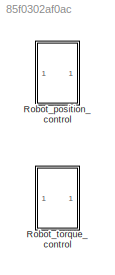
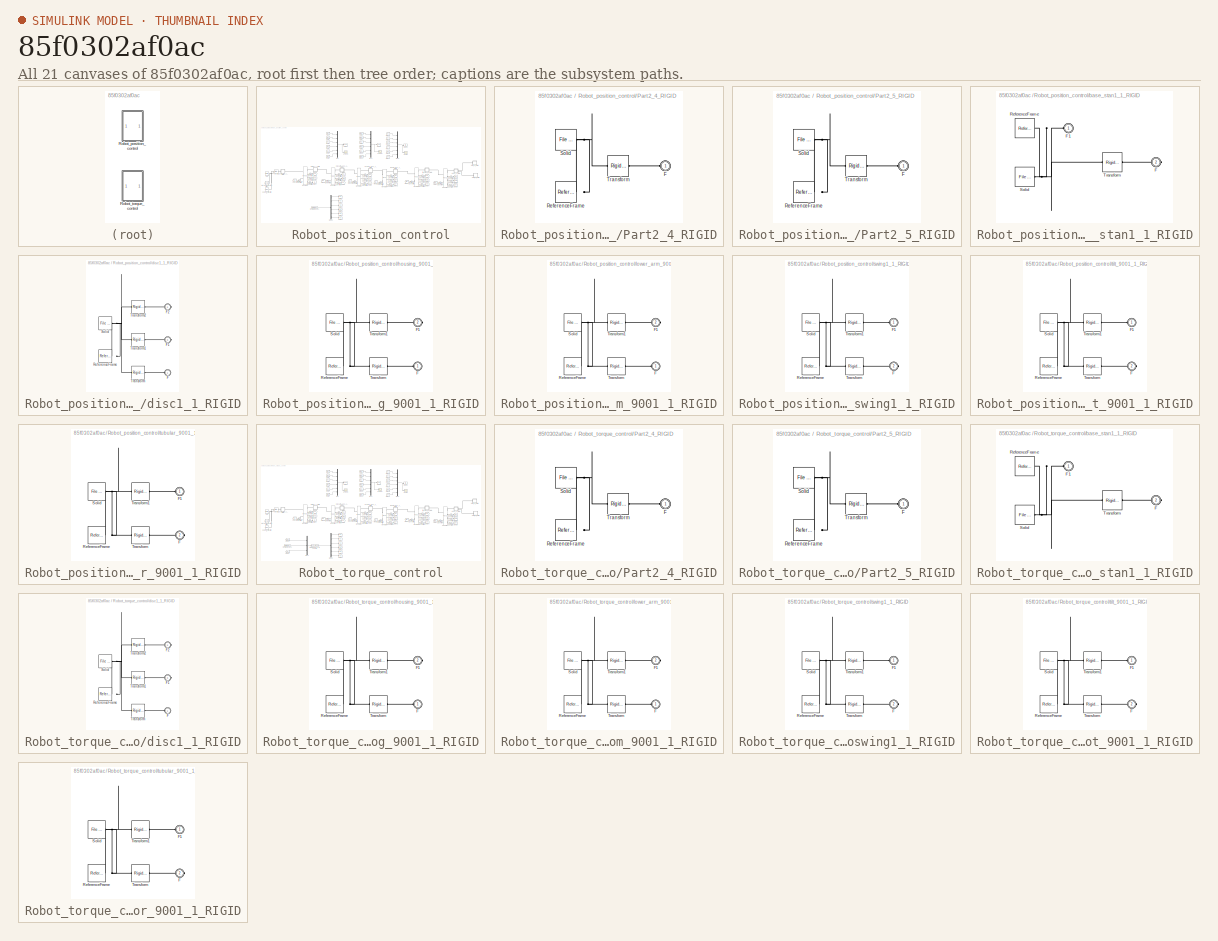
[diagram: thumbnail index - all 21 canvases of the model, root first then tree order]
MODEL slx_85f0302af0ac
KIND model
CONFIG AbsTol = auto
CONFIG EnableMultiTasking = off
CONFIG FixedStep = auto
CONFIG MaxStep = auto
CONFIG MinStep = auto
CONFIG RelTol = 1e-3
CONFIG SampleTimeConstraint = Unconstrained
CONFIG Solver = ode23t
CONFIG SolverName = ode23t
CONFIG StartTime = 0.0
CONFIG StopTime = 30
WORKSPACE source: external: MATLAB File  (data not in archive)
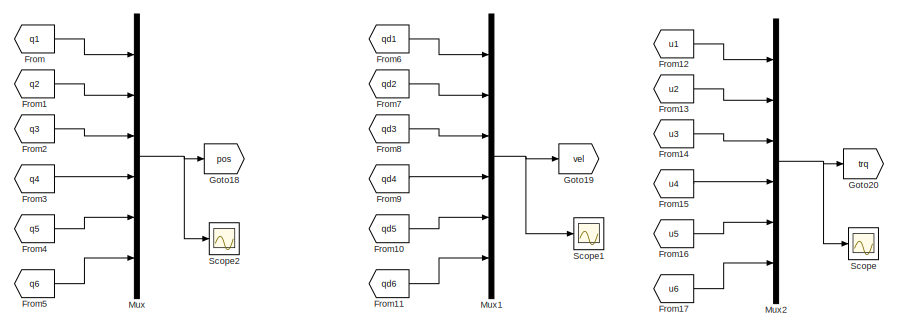
[diagram: Robot_position_control - part 1/3, top center region]
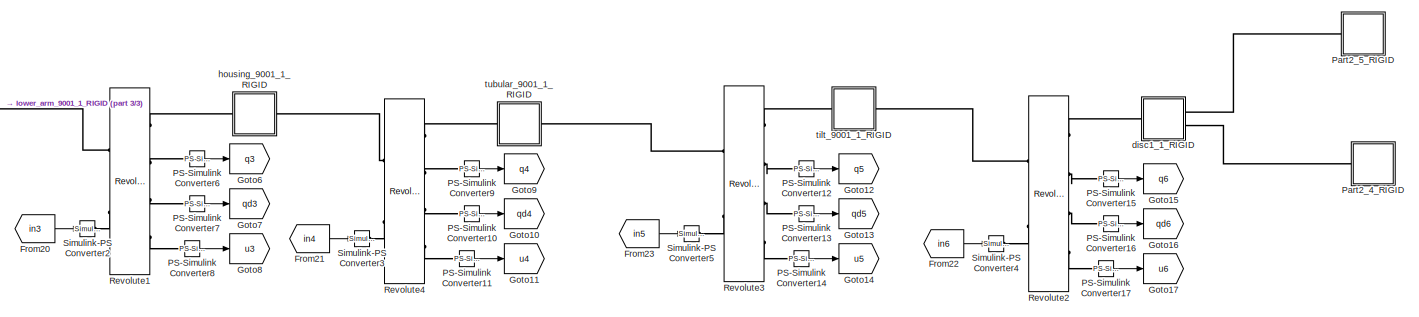
[diagram: Robot_position_control - part 2/3, middle right region]
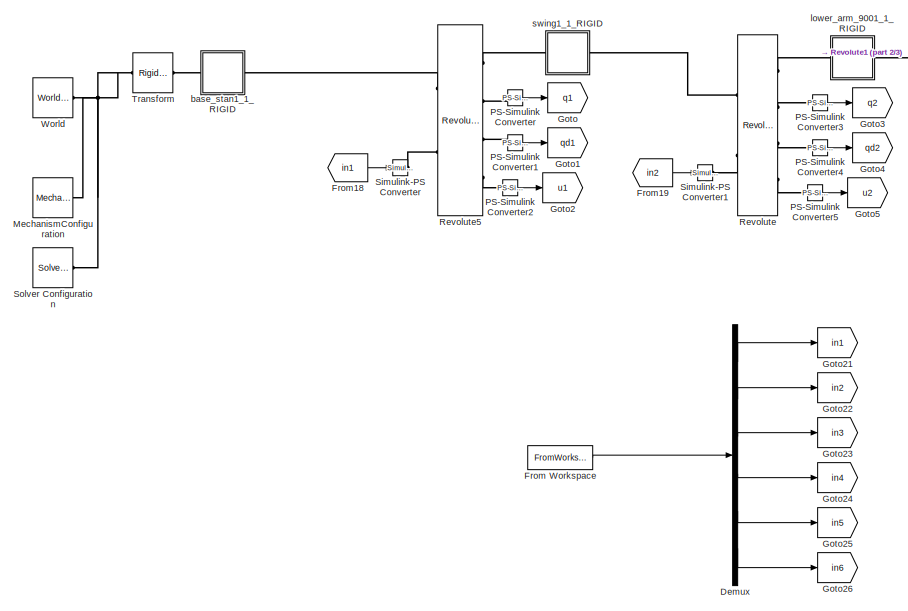
[diagram: Robot_position_control - part 3/3, bottom left region]
BLOCK [SubSystem] Robot_position_control
  Commented = on
  Ports = []
  RequestExecContextInheritance = off
BLOCK [Demux] Robot_position_control/Demux
  Outputs = 6
  Ports = [1, 6]
BLOCK [From] Robot_position_control/From
  GotoTag = q1
BLOCK [FromWorkspace] Robot_position_control/From Workspace
  VariableName = [tt' posd]
BLOCK [From] Robot_position_control/From1
  GotoTag = q2
BLOCK [From] Robot_position_control/From10
  GotoTag = qd5
BLOCK [From] Robot_position_control/From11
  GotoTag = qd6
BLOCK [From] Robot_position_control/From12
  GotoTag = u1
BLOCK [From] Robot_position_control/From13
  GotoTag = u2
BLOCK [From] Robot_position_control/From14
  GotoTag = u3
BLOCK [From] Robot_position_control/From15
  GotoTag = u4
BLOCK [From] Robot_position_control/From16
  GotoTag = u5
BLOCK [From] Robot_position_control/From17
  GotoTag = u6
BLOCK [From] Robot_position_control/From18
  GotoTag = in1
BLOCK [From] Robot_position_control/From19
  GotoTag = in2
BLOCK [From] Robot_position_control/From2
  GotoTag = q3
BLOCK [From] Robot_position_control/From20
  GotoTag = in3
BLOCK [From] Robot_position_control/From21
  GotoTag = in4
BLOCK [From] Robot_position_control/From22
  GotoTag = in6
BLOCK [From] Robot_position_control/From23
  GotoTag = in5
BLOCK [From] Robot_position_control/From3
  GotoTag = q4
BLOCK [From] Robot_position_control/From4
  GotoTag = q5
BLOCK [From] Robot_position_control/From5
  GotoTag = q6
BLOCK [From] Robot_position_control/From6
  GotoTag = qd1
BLOCK [From] Robot_position_control/From7
  GotoTag = qd2
BLOCK [From] Robot_position_control/From8
  GotoTag = qd3
BLOCK [From] Robot_position_control/From9
  GotoTag = qd4
BLOCK [Goto] Robot_position_control/Goto
  GotoTag = q1
BLOCK [Goto] Robot_position_control/Goto1
  GotoTag = qd1
BLOCK [Goto] Robot_position_control/Goto10
  GotoTag = qd4
BLOCK [Goto] Robot_position_control/Goto11
  GotoTag = u4
BLOCK [Goto] Robot_position_control/Goto12
  GotoTag = q5
BLOCK [Goto] Robot_position_control/Goto13
  GotoTag = qd5
BLOCK [Goto] Robot_position_control/Goto14
  GotoTag = u5
BLOCK [Goto] Robot_position_control/Goto15
  GotoTag = q6
BLOCK [Goto] Robot_position_control/Goto16
  GotoTag = qd6
BLOCK [Goto] Robot_position_control/Goto17
  GotoTag = u6
BLOCK [Goto] Robot_position_control/Goto18
  GotoTag = pos
BLOCK [Goto] Robot_position_control/Goto19
  GotoTag = vel
BLOCK [Goto] Robot_position_control/Goto2
  GotoTag = u1
BLOCK [Goto] Robot_position_control/Goto20
  GotoTag = trq
BLOCK [Goto] Robot_position_control/Goto21
  GotoTag = in1
BLOCK [Goto] Robot_position_control/Goto22
  GotoTag = in2
BLOCK [Goto] Robot_position_control/Goto23
  GotoTag = in3
BLOCK [Goto] Robot_position_control/Goto24
  GotoTag = in4
BLOCK [Goto] Robot_position_control/Goto25
  GotoTag = in5
BLOCK [Goto] Robot_position_control/Goto26
  GotoTag = in6
BLOCK [Goto] Robot_position_control/Goto3
  GotoTag = q2
BLOCK [Goto] Robot_position_control/Goto4
  GotoTag = qd2
BLOCK [Goto] Robot_position_control/Goto5
  GotoTag = u2
BLOCK [Goto] Robot_position_control/Goto6
  GotoTag = q3
BLOCK [Goto] Robot_position_control/Goto7
  GotoTag = qd3
BLOCK [Goto] Robot_position_control/Goto8
  GotoTag = u3
BLOCK [Goto] Robot_position_control/Goto9
  GotoTag = q4
BLOCK [Reference] Robot_position_control/MechanismConfiguration  REF=sm_lib/Utilities/Mechanism
Configuration
  Ports = [0, 0, 0, 0, 0, 0, 1]
  SourceBlock = sm_lib/Utilities/Mechanism\nConfiguration
  SourceProductBaseCode = MS
  SourceType = Mechanism\nConfiguration
BLOCK [Mux] Robot_position_control/Mux
  DisplayOption = bar
  Inputs = 6
  Ports = [6, 1]
BLOCK [Mux] Robot_position_control/Mux1
  DisplayOption = bar
  Inputs = 6
  Ports = [6, 1]
BLOCK [Mux] Robot_position_control/Mux2
  DisplayOption = bar
  Inputs = 6
  Ports = [6, 1]
BLOCK [Reference] Robot_position_control/PS-Simulink Converter  REF=nesl_utility/PS-Simulink
Converter
  Ports = [0, 1, 0, 0, 0, 1]
  SourceBlock = nesl_utility/PS-Simulink\nConverter
  SourceProductBaseCode = SS
  SourceType = PS-Simulink\nConverter
BLOCK [Reference] Robot_position_control/PS-Simulink Converter1  REF=nesl_utility/PS-Simulink
Converter
  Ports = [0, 1, 0, 0, 0, 1]
  SourceBlock = nesl_utility/PS-Simulink\nConverter
  SourceProductBaseCode = SS
  SourceType = PS-Simulink\nConverter
BLOCK [Reference] Robot_position_control/PS-Simulink Converter10  REF=nesl_utility/PS-Simulink
Converter
  Ports = [0, 1, 0, 0, 0, 1]
  SourceBlock = nesl_utility/PS-Simulink\nConverter
  SourceProductBaseCode = SS
  SourceType = PS-Simulink\nConverter
BLOCK [Reference] Robot_position_control/PS-Simulink Converter11  REF=nesl_utility/PS-Simulink
Converter
  Ports = [0, 1, 0, 0, 0, 1]
  SourceBlock = nesl_utility/PS-Simulink\nConverter
  SourceProductBaseCode = SS
  SourceType = PS-Simulink\nConverter
BLOCK [Reference] Robot_position_control/PS-Simulink Converter12  REF=nesl_utility/PS-Simulink
Converter
  Ports = [0, 1, 0, 0, 0, 1]
  SourceBlock = nesl_utility/PS-Simulink\nConverter
  SourceProductBaseCode = SS
  SourceType = PS-Simulink\nConverter
BLOCK [Reference] Robot_position_control/PS-Simulink Converter13  REF=nesl_utility/PS-Simulink
Converter
  Ports = [0, 1, 0, 0, 0, 1]
  SourceBlock = nesl_utility/PS-Simulink\nConverter
  SourceProductBaseCode = SS
  SourceType = PS-Simulink\nConverter
BLOCK [Reference] Robot_position_control/PS-Simulink Converter14  REF=nesl_utility/PS-Simulink
Converter
  Ports = [0, 1, 0, 0, 0, 1]
  SourceBlock = nesl_utility/PS-Simulink\nConverter
  SourceProductBaseCode = SS
  SourceType = PS-Simulink\nConverter
BLOCK [Reference] Robot_position_control/PS-Simulink Converter15  REF=nesl_utility/PS-Simulink
Converter
  Ports = [0, 1, 0, 0, 0, 1]
  SourceBlock = nesl_utility/PS-Simulink\nConverter
  SourceProductBaseCode = SS
  SourceType = PS-Simulink\nConverter
BLOCK [Reference] Robot_position_control/PS-Simulink Converter16  REF=nesl_utility/PS-Simulink
Converter
  Ports = [0, 1, 0, 0, 0, 1]
  SourceBlock = nesl_utility/PS-Simulink\nConverter
  SourceProductBaseCode = SS
  SourceType = PS-Simulink\nConverter
BLOCK [Reference] Robot_position_control/PS-Simulink Converter17  REF=nesl_utility/PS-Simulink
Converter
  Ports = [0, 1, 0, 0, 0, 1]
  SourceBlock = nesl_utility/PS-Simulink\nConverter
  SourceProductBaseCode = SS
  SourceType = PS-Simulink\nConverter
BLOCK [Reference] Robot_position_control/PS-Simulink Converter2  REF=nesl_utility/PS-Simulink
Converter
  Ports = [0, 1, 0, 0, 0, 1]
  SourceBlock = nesl_utility/PS-Simulink\nConverter
  SourceProductBaseCode = SS
  SourceType = PS-Simulink\nConverter
BLOCK [Reference] Robot_position_control/PS-Simulink Converter3  REF=nesl_utility/PS-Simulink
Converter
  Ports = [0, 1, 0, 0, 0, 1]
  SourceBlock = nesl_utility/PS-Simulink\nConverter
  SourceProductBaseCode = SS
  SourceType = PS-Simulink\nConverter
BLOCK [Reference] Robot_position_control/PS-Simulink Converter4  REF=nesl_utility/PS-Simulink
Converter
  Ports = [0, 1, 0, 0, 0, 1]
  SourceBlock = nesl_utility/PS-Simulink\nConverter
  SourceProductBaseCode = SS
  SourceType = PS-Simulink\nConverter
BLOCK [Reference] Robot_position_control/PS-Simulink Converter5  REF=nesl_utility/PS-Simulink
Converter
  Ports = [0, 1, 0, 0, 0, 1]
  SourceBlock = nesl_utility/PS-Simulink\nConverter
  SourceProductBaseCode = SS
  SourceType = PS-Simulink\nConverter
BLOCK [Reference] Robot_position_control/PS-Simulink Converter6  REF=nesl_utility/PS-Simulink
Converter
  Ports = [0, 1, 0, 0, 0, 1]
  SourceBlock = nesl_utility/PS-Simulink\nConverter
  SourceProductBaseCode = SS
  SourceType = PS-Simulink\nConverter
BLOCK [Reference] Robot_position_control/PS-Simulink Converter7  REF=nesl_utility/PS-Simulink
Converter
  Ports = [0, 1, 0, 0, 0, 1]
  SourceBlock = nesl_utility/PS-Simulink\nConverter
  SourceProductBaseCode = SS
  SourceType = PS-Simulink\nConverter
BLOCK [Reference] Robot_position_control/PS-Simulink Converter8  REF=nesl_utility/PS-Simulink
Converter
  Ports = [0, 1, 0, 0, 0, 1]
  SourceBlock = nesl_utility/PS-Simulink\nConverter
  SourceProductBaseCode = SS
  SourceType = PS-Simulink\nConverter
BLOCK [Reference] Robot_position_control/PS-Simulink Converter9  REF=nesl_utility/PS-Simulink
Converter
  Ports = [0, 1, 0, 0, 0, 1]
  SourceBlock = nesl_utility/PS-Simulink\nConverter
  SourceProductBaseCode = SS
  SourceType = PS-Simulink\nConverter
BLOCK [SubSystem] Robot_position_control/Part2_4_RIGID
  Ports = [0, 0, 0, 0, 0, 1]
  RequestExecContextInheritance = off
BLOCK [PMIOPort] Robot_position_control/Part2_4_RIGID/F
  Side = Left
BLOCK [Reference] Robot_position_control/Part2_4_RIGID/ReferenceFrame  REF=sm_lib/Frames and
Transforms/Reference
Frame
  Ports = [0, 0, 0, 0, 0, 0, 1]
  SourceBlock = sm_lib/Frames and\nTransforms/Reference\nFrame
  SourceProductBaseCode = MS
  SourceType = Reference\nFrame
BLOCK [Reference] Robot_position_control/Part2_4_RIGID/Solid  REF=sm_lib/Body Elements/File Solid
  Ports = [0, 0, 0, 0, 0, 0, 1]
  SourceBlock = sm_lib/Body Elements/File Solid
  SourceProductBaseCode = MS
  SourceType = File Solid
BLOCK [Reference] Robot_position_control/Part2_4_RIGID/Transform  REF=sm_lib/Frames and
Transforms/Rigid
Transform
  Ports = [0, 0, 0, 0, 0, 1, 1]
  SourceBlock = sm_lib/Frames and\nTransforms/Rigid\nTransform
  SourceProductBaseCode = MS
  SourceType = Rigid\nTransform
BLOCK [SubSystem] Robot_position_control/Part2_5_RIGID
  Ports = [0, 0, 0, 0, 0, 1]
  RequestExecContextInheritance = off
BLOCK [PMIOPort] Robot_position_control/Part2_5_RIGID/F
  Side = Left
BLOCK [Reference] Robot_position_control/Part2_5_RIGID/ReferenceFrame  REF=sm_lib/Frames and
Transforms/Reference
Frame
  Ports = [0, 0, 0, 0, 0, 0, 1]
  SourceBlock = sm_lib/Frames and\nTransforms/Reference\nFrame
  SourceProductBaseCode = MS
  SourceType = Reference\nFrame
BLOCK [Reference] Robot_position_control/Part2_5_RIGID/Solid  REF=sm_lib/Body Elements/File Solid
  Ports = [0, 0, 0, 0, 0, 0, 1]
  SourceBlock = sm_lib/Body Elements/File Solid
  SourceProductBaseCode = MS
  SourceType = File Solid
BLOCK [Reference] Robot_position_control/Part2_5_RIGID/Transform  REF=sm_lib/Frames and
Transforms/Rigid
Transform
  Ports = [0, 0, 0, 0, 0, 1, 1]
  SourceBlock = sm_lib/Frames and\nTransforms/Rigid\nTransform
  SourceProductBaseCode = MS
  SourceType = Rigid\nTransform
BLOCK [Reference] Robot_position_control/Revolute  REF=sm_lib/Joints/Revolute Joint
  Ports = [0, 0, 0, 0, 0, 2, 4]
  SourceBlock = sm_lib/Joints/Revolute Joint
  SourceProductBaseCode = MS
  SourceType = Revolute Joint
BLOCK [Reference] Robot_position_control/Revolute1  REF=sm_lib/Joints/Revolute Joint
  Ports = [0, 0, 0, 0, 0, 2, 4]
  SourceBlock = sm_lib/Joints/Revolute Joint
  SourceProductBaseCode = MS
  SourceType = Revolute Joint
BLOCK [Reference] Robot_position_control/Revolute2  REF=sm_lib/Joints/Revolute Joint
  Ports = [0, 0, 0, 0, 0, 2, 4]
  SourceBlock = sm_lib/Joints/Revolute Joint
  SourceProductBaseCode = MS
  SourceType = Revolute Joint
BLOCK [Reference] Robot_position_control/Revolute3  REF=sm_lib/Joints/Revolute Joint
  Ports = [0, 0, 0, 0, 0, 2, 4]
  SourceBlock = sm_lib/Joints/Revolute Joint
  SourceProductBaseCode = MS
  SourceType = Revolute Joint
BLOCK [Reference] Robot_position_control/Revolute4  REF=sm_lib/Joints/Revolute Joint
  Ports = [0, 0, 0, 0, 0, 2, 4]
  SourceBlock = sm_lib/Joints/Revolute Joint
  SourceProductBaseCode = MS
  SourceType = Revolute Joint
BLOCK [Reference] Robot_position_control/Revolute5  REF=sm_lib/Joints/Revolute Joint
  Ports = [0, 0, 0, 0, 0, 2, 4]
  SourceBlock = sm_lib/Joints/Revolute Joint
  SourceProductBaseCode = MS
  SourceType = Revolute Joint
BLOCK [Scope] Robot_position_control/Scope
  Floating = off
  NumInputPorts = 1
  Ports = [1]
  ScopeSpecificationString = Simulink.scopes.TimeScopeBlockCfg('CurrentConfiguration', extmgr.ConfigurationSet(extmgr.Configuration('Core','General UI',true),extmgr.Configuration('Core','Source UI',true),extmgr.Configuration('Sources','WiredSimulink',true),extmgr.Configuration('Visuals','Time Domain',true),extmgr.Configuration('Tools','Plot Navigation',true),extmgr.Configuration('Tools','Measurements',true)),'Version','2020a'...<+1ch>
BLOCK [Scope] Robot_position_control/Scope1
  Floating = off
  NumInputPorts = 1
  Ports = [1]
  ScopeSpecificationString = Simulink.scopes.TimeScopeBlockCfg('CurrentConfiguration', extmgr.ConfigurationSet(extmgr.Configuration('Core','General UI',true),extmgr.Configuration('Core','Source UI',true),extmgr.Configuration('Sources','WiredSimulink',true,'DataLoggingVariableName','ScopeData1'),extmgr.Configuration('Visuals','Time Domain',true),extmgr.Configuration('Tools','Plot Navigation',true),extmgr.Configuration('Tools',...<+40ch>
BLOCK [Scope] Robot_position_control/Scope2
  Floating = off
  NumInputPorts = 1
  Ports = [1]
  ScopeSpecificationString = Simulink.scopes.TimeScopeBlockCfg('CurrentConfiguration', extmgr.ConfigurationSet(extmgr.Configuration('Core','General UI',true),extmgr.Configuration('Core','Source UI',true),extmgr.Configuration('Sources','WiredSimulink',true,'DataLoggingVariableName','ScopeData2'),extmgr.Configuration('Visuals','Time Domain',true),extmgr.Configuration('Tools','Plot Navigation',true),extmgr.Configuration('Tools',...<+40ch>
BLOCK [Reference] Robot_position_control/Simulink-PS Converter  REF=nesl_utility/Simulink-PS
Converter
  Ports = [1, 0, 0, 0, 0, 0, 1]
  SourceBlock = nesl_utility/Simulink-PS\nConverter
  SourceProductBaseCode = SS
  SourceType = Simulink-PS\nConverter
BLOCK [Reference] Robot_position_control/Simulink-PS Converter1  REF=nesl_utility/Simulink-PS
Converter
  Ports = [1, 0, 0, 0, 0, 0, 1]
  SourceBlock = nesl_utility/Simulink-PS\nConverter
  SourceProductBaseCode = SS
  SourceType = Simulink-PS\nConverter
BLOCK [Reference] Robot_position_control/Simulink-PS Converter2  REF=nesl_utility/Simulink-PS
Converter
  Ports = [1, 0, 0, 0, 0, 0, 1]
  SourceBlock = nesl_utility/Simulink-PS\nConverter
  SourceProductBaseCode = SS
  SourceType = Simulink-PS\nConverter
BLOCK [Reference] Robot_position_control/Simulink-PS Converter3  REF=nesl_utility/Simulink-PS
Converter
  Ports = [1, 0, 0, 0, 0, 0, 1]
  SourceBlock = nesl_utility/Simulink-PS\nConverter
  SourceProductBaseCode = SS
  SourceType = Simulink-PS\nConverter
BLOCK [Reference] Robot_position_control/Simulink-PS Converter4  REF=nesl_utility/Simulink-PS
Converter
  Ports = [1, 0, 0, 0, 0, 0, 1]
  SourceBlock = nesl_utility/Simulink-PS\nConverter
  SourceProductBaseCode = SS
  SourceType = Simulink-PS\nConverter
BLOCK [Reference] Robot_position_control/Simulink-PS Converter5  REF=nesl_utility/Simulink-PS
Converter
  Ports = [1, 0, 0, 0, 0, 0, 1]
  SourceBlock = nesl_utility/Simulink-PS\nConverter
  SourceProductBaseCode = SS
  SourceType = Simulink-PS\nConverter
BLOCK [Reference] Robot_position_control/Solver Configuration  REF=nesl_utility/Solver
Configuration
  Ports = [0, 0, 0, 0, 0, 0, 1]
  SourceBlock = nesl_utility/Solver\nConfiguration
  SourceProductBaseCode = SS
  SourceType = Solver\nConfiguration
BLOCK [Reference] Robot_position_control/Transform  REF=sm_lib/Frames and
Transforms/Rigid
Transform
  Ports = [0, 0, 0, 0, 0, 1, 1]
  SourceBlock = sm_lib/Frames and\nTransforms/Rigid\nTransform
  SourceProductBaseCode = MS
  SourceType = Rigid\nTransform
BLOCK [Reference] Robot_position_control/World  REF=sm_lib/Frames and
Transforms/World Frame
  Ports = [0, 0, 0, 0, 0, 0, 1]
  SourceBlock = sm_lib/Frames and\nTransforms/World Frame
  SourceProductBaseCode = MS
  SourceType = World Frame
BLOCK [SubSystem] Robot_position_control/base_stan1_1_RIGID
  Ports = [0, 0, 0, 0, 0, 1, 1]
  RequestExecContextInheritance = off
BLOCK [PMIOPort] Robot_position_control/base_stan1_1_RIGID/F
  Port = 2
  Side = Right
BLOCK [PMIOPort] Robot_position_control/base_stan1_1_RIGID/F1
  Side = Left
BLOCK [Reference] Robot_position_control/base_stan1_1_RIGID/ReferenceFrame  REF=sm_lib/Frames and
Transforms/Reference
Frame
  Ports = [0, 0, 0, 0, 0, 0, 1]
  SourceBlock = sm_lib/Frames and\nTransforms/Reference\nFrame
  SourceProductBaseCode = MS
  SourceType = Reference\nFrame
BLOCK [Reference] Robot_position_control/base_stan1_1_RIGID/Solid  REF=sm_lib/Body Elements/File Solid
  Ports = [0, 0, 0, 0, 0, 0, 1]
  SourceBlock = sm_lib/Body Elements/File Solid
  SourceProductBaseCode = MS
  SourceType = File Solid
BLOCK [Reference] Robot_position_control/base_stan1_1_RIGID/Transform  REF=sm_lib/Frames and
Transforms/Rigid
Transform
  Ports = [0, 0, 0, 0, 0, 1, 1]
  SourceBlock = sm_lib/Frames and\nTransforms/Rigid\nTransform
  SourceProductBaseCode = MS
  SourceType = Rigid\nTransform
BLOCK [SubSystem] Robot_position_control/disc1_1_RIGID
  Ports = [0, 0, 0, 0, 0, 1, 2]
  RequestExecContextInheritance = off
BLOCK [PMIOPort] Robot_position_control/disc1_1_RIGID/F
  Side = Left
BLOCK [PMIOPort] Robot_position_control/disc1_1_RIGID/F1
  Port = 3
  Side = Right
BLOCK [PMIOPort] Robot_position_control/disc1_1_RIGID/F2
  Port = 2
  Side = Right
BLOCK [Reference] Robot_position_control/disc1_1_RIGID/ReferenceFrame  REF=sm_lib/Frames and
Transforms/Reference
Frame
  Ports = [0, 0, 0, 0, 0, 0, 1]
  SourceBlock = sm_lib/Frames and\nTransforms/Reference\nFrame
  SourceProductBaseCode = MS
  SourceType = Reference\nFrame
BLOCK [Reference] Robot_position_control/disc1_1_RIGID/Solid  REF=sm_lib/Body Elements/File Solid
  Ports = [0, 0, 0, 0, 0, 0, 1]
  SourceBlock = sm_lib/Body Elements/File Solid
  SourceProductBaseCode = MS
  SourceType = File Solid
BLOCK [Reference] Robot_position_control/disc1_1_RIGID/Transform  REF=sm_lib/Frames and
Transforms/Rigid
Transform
  Ports = [0, 0, 0, 0, 0, 1, 1]
  SourceBlock = sm_lib/Frames and\nTransforms/Rigid\nTransform
  SourceProductBaseCode = MS
  SourceType = Rigid\nTransform
BLOCK [Reference] Robot_position_control/disc1_1_RIGID/Transform1  REF=sm_lib/Frames and
Transforms/Rigid
Transform
  Ports = [0, 0, 0, 0, 0, 1, 1]
  SourceBlock = sm_lib/Frames and\nTransforms/Rigid\nTransform
  SourceProductBaseCode = MS
  SourceType = Rigid\nTransform
BLOCK [Reference] Robot_position_control/disc1_1_RIGID/Transform2  REF=sm_lib/Frames and
Transforms/Rigid
Transform
  Ports = [0, 0, 0, 0, 0, 1, 1]
  SourceBlock = sm_lib/Frames and\nTransforms/Rigid\nTransform
  SourceProductBaseCode = MS
  SourceType = Rigid\nTransform
BLOCK [SubSystem] Robot_position_control/housing_9001_1_RIGID
  Ports = [0, 0, 0, 0, 0, 1, 1]
  RequestExecContextInheritance = off
BLOCK [PMIOPort] Robot_position_control/housing_9001_1_RIGID/F
  Side = Left
BLOCK [PMIOPort] Robot_position_control/housing_9001_1_RIGID/F1
  Port = 2
  Side = Right
BLOCK [Reference] Robot_position_control/housing_9001_1_RIGID/ReferenceFrame  REF=sm_lib/Frames and
Transforms/Reference
Frame
  Ports = [0, 0, 0, 0, 0, 0, 1]
  SourceBlock = sm_lib/Frames and\nTransforms/Reference\nFrame
  SourceProductBaseCode = MS
  SourceType = Reference\nFrame
BLOCK [Reference] Robot_position_control/housing_9001_1_RIGID/Solid  REF=sm_lib/Body Elements/File Solid
  Ports = [0, 0, 0, 0, 0, 0, 1]
  SourceBlock = sm_lib/Body Elements/File Solid
  SourceProductBaseCode = MS
  SourceType = File Solid
BLOCK [Reference] Robot_position_control/housing_9001_1_RIGID/Transform  REF=sm_lib/Frames and
Transforms/Rigid
Transform
  Ports = [0, 0, 0, 0, 0, 1, 1]
  SourceBlock = sm_lib/Frames and\nTransforms/Rigid\nTransform
  SourceProductBaseCode = MS
  SourceType = Rigid\nTransform
BLOCK [Reference] Robot_position_control/housing_9001_1_RIGID/Transform1  REF=sm_lib/Frames and
Transforms/Rigid
Transform
  Ports = [0, 0, 0, 0, 0, 1, 1]
  SourceBlock = sm_lib/Frames and\nTransforms/Rigid\nTransform
  SourceProductBaseCode = MS
  SourceType = Rigid\nTransform
BLOCK [SubSystem] Robot_position_control/lower_arm_9001_1_RIGID
  Ports = [0, 0, 0, 0, 0, 1, 1]
  RequestExecContextInheritance = off
BLOCK [PMIOPort] Robot_position_control/lower_arm_9001_1_RIGID/F
  Side = Left
BLOCK [PMIOPort] Robot_position_control/lower_arm_9001_1_RIGID/F1
  Port = 2
  Side = Right
BLOCK [Reference] Robot_position_control/lower_arm_9001_1_RIGID/ReferenceFrame  REF=sm_lib/Frames and
Transforms/Reference
Frame
  Ports = [0, 0, 0, 0, 0, 0, 1]
  SourceBlock = sm_lib/Frames and\nTransforms/Reference\nFrame
  SourceProductBaseCode = MS
  SourceType = Reference\nFrame
BLOCK [Reference] Robot_position_control/lower_arm_9001_1_RIGID/Solid  REF=sm_lib/Body Elements/File Solid
  Ports = [0, 0, 0, 0, 0, 0, 1]
  SourceBlock = sm_lib/Body Elements/File Solid
  SourceProductBaseCode = MS
  SourceType = File Solid
BLOCK [Reference] Robot_position_control/lower_arm_9001_1_RIGID/Transform  REF=sm_lib/Frames and
Transforms/Rigid
Transform
  Ports = [0, 0, 0, 0, 0, 1, 1]
  SourceBlock = sm_lib/Frames and\nTransforms/Rigid\nTransform
  SourceProductBaseCode = MS
  SourceType = Rigid\nTransform
BLOCK [Reference] Robot_position_control/lower_arm_9001_1_RIGID/Transform1  REF=sm_lib/Frames and
Transforms/Rigid
Transform
  Ports = [0, 0, 0, 0, 0, 1, 1]
  SourceBlock = sm_lib/Frames and\nTransforms/Rigid\nTransform
  SourceProductBaseCode = MS
  SourceType = Rigid\nTransform
BLOCK [SubSystem] Robot_position_control/swing1_1_RIGID
  Ports = [0, 0, 0, 0, 0, 1, 1]
  RequestExecContextInheritance = off
BLOCK [PMIOPort] Robot_position_control/swing1_1_RIGID/F
  Port = 2
  Side = Right
BLOCK [PMIOPort] Robot_position_control/swing1_1_RIGID/F1
  Side = Left
BLOCK [Reference] Robot_position_control/swing1_1_RIGID/ReferenceFrame  REF=sm_lib/Frames and
Transforms/Reference
Frame
  Ports = [0, 0, 0, 0, 0, 0, 1]
  SourceBlock = sm_lib/Frames and\nTransforms/Reference\nFrame
  SourceProductBaseCode = MS
  SourceType = Reference\nFrame
BLOCK [Reference] Robot_position_control/swing1_1_RIGID/Solid  REF=sm_lib/Body Elements/File Solid
  Ports = [0, 0, 0, 0, 0, 0, 1]
  SourceBlock = sm_lib/Body Elements/File Solid
  SourceProductBaseCode = MS
  SourceType = File Solid
BLOCK [Reference] Robot_position_control/swing1_1_RIGID/Transform  REF=sm_lib/Frames and
Transforms/Rigid
Transform
  Ports = [0, 0, 0, 0, 0, 1, 1]
  SourceBlock = sm_lib/Frames and\nTransforms/Rigid\nTransform
  SourceProductBaseCode = MS
  SourceType = Rigid\nTransform
BLOCK [Reference] Robot_position_control/swing1_1_RIGID/Transform1  REF=sm_lib/Frames and
Transforms/Rigid
Transform
  Ports = [0, 0, 0, 0, 0, 1, 1]
  SourceBlock = sm_lib/Frames and\nTransforms/Rigid\nTransform
  SourceProductBaseCode = MS
  SourceType = Rigid\nTransform
BLOCK [SubSystem] Robot_position_control/tilt_9001_1_RIGID
  Ports = [0, 0, 0, 0, 0, 1, 1]
  RequestExecContextInheritance = off
BLOCK [PMIOPort] Robot_position_control/tilt_9001_1_RIGID/F
  Port = 2
  Side = Right
BLOCK [PMIOPort] Robot_position_control/tilt_9001_1_RIGID/F1
  Side = Left
BLOCK [Reference] Robot_position_control/tilt_9001_1_RIGID/ReferenceFrame  REF=sm_lib/Frames and
Transforms/Reference
Frame
  Ports = [0, 0, 0, 0, 0, 0, 1]
  SourceBlock = sm_lib/Frames and\nTransforms/Reference\nFrame
  SourceProductBaseCode = MS
  SourceType = Reference\nFrame
BLOCK [Reference] Robot_position_control/tilt_9001_1_RIGID/Solid  REF=sm_lib/Body Elements/File Solid
  Ports = [0, 0, 0, 0, 0, 0, 1]
  SourceBlock = sm_lib/Body Elements/File Solid
  SourceProductBaseCode = MS
  SourceType = File Solid
BLOCK [Reference] Robot_position_control/tilt_9001_1_RIGID/Transform  REF=sm_lib/Frames and
Transforms/Rigid
Transform
  Ports = [0, 0, 0, 0, 0, 1, 1]
  SourceBlock = sm_lib/Frames and\nTransforms/Rigid\nTransform
  SourceProductBaseCode = MS
  SourceType = Rigid\nTransform
BLOCK [Reference] Robot_position_control/tilt_9001_1_RIGID/Transform1  REF=sm_lib/Frames and
Transforms/Rigid
Transform
  Ports = [0, 0, 0, 0, 0, 1, 1]
  SourceBlock = sm_lib/Frames and\nTransforms/Rigid\nTransform
  SourceProductBaseCode = MS
  SourceType = Rigid\nTransform
BLOCK [SubSystem] Robot_position_control/tubular_9001_1_RIGID
  Ports = [0, 0, 0, 0, 0, 1, 1]
  RequestExecContextInheritance = off
BLOCK [PMIOPort] Robot_position_control/tubular_9001_1_RIGID/F
  Port = 2
  Side = Right
BLOCK [PMIOPort] Robot_position_control/tubular_9001_1_RIGID/F1
  Side = Left
BLOCK [Reference] Robot_position_control/tubular_9001_1_RIGID/ReferenceFrame  REF=sm_lib/Frames and
Transforms/Reference
Frame
  Ports = [0, 0, 0, 0, 0, 0, 1]
  SourceBlock = sm_lib/Frames and\nTransforms/Reference\nFrame
  SourceProductBaseCode = MS
  SourceType = Reference\nFrame
BLOCK [Reference] Robot_position_control/tubular_9001_1_RIGID/Solid  REF=sm_lib/Body Elements/File Solid
  Ports = [0, 0, 0, 0, 0, 0, 1]
  SourceBlock = sm_lib/Body Elements/File Solid
  SourceProductBaseCode = MS
  SourceType = File Solid
BLOCK [Reference] Robot_position_control/tubular_9001_1_RIGID/Transform  REF=sm_lib/Frames and
Transforms/Rigid
Transform
  Ports = [0, 0, 0, 0, 0, 1, 1]
  SourceBlock = sm_lib/Frames and\nTransforms/Rigid\nTransform
  SourceProductBaseCode = MS
  SourceType = Rigid\nTransform
BLOCK [Reference] Robot_position_control/tubular_9001_1_RIGID/Transform1  REF=sm_lib/Frames and
Transforms/Rigid
Transform
  Ports = [0, 0, 0, 0, 0, 1, 1]
  SourceBlock = sm_lib/Frames and\nTransforms/Rigid\nTransform
  SourceProductBaseCode = MS
  SourceType = Rigid\nTransform
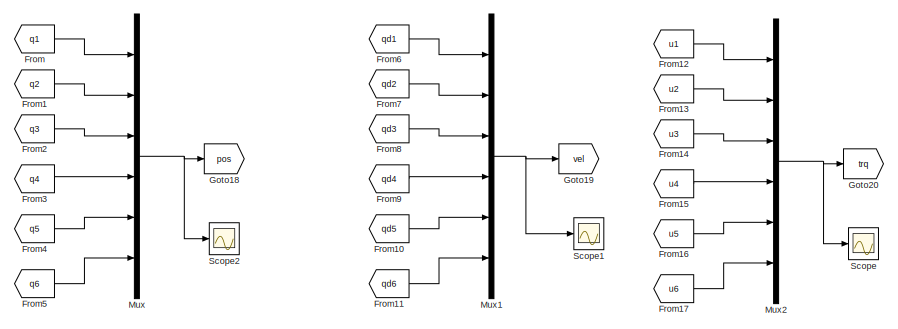
[diagram: Robot_torque_control - part 1/3, top center region]
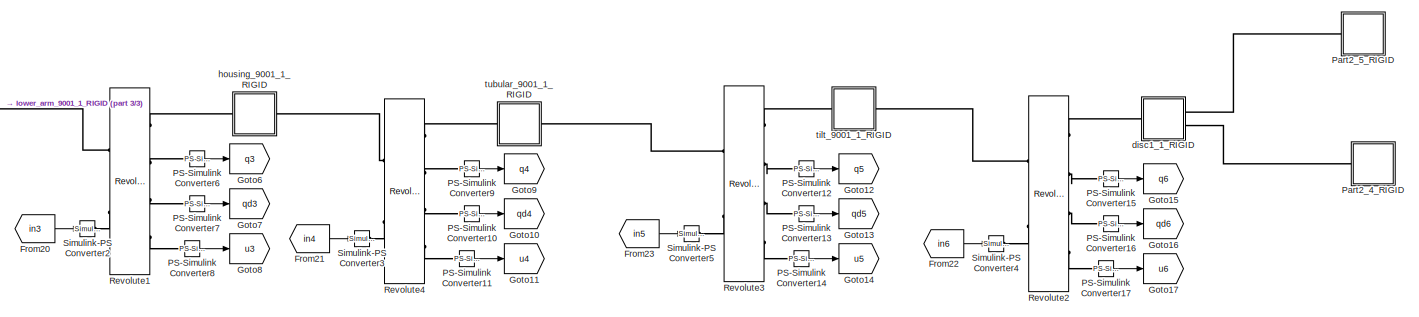
[diagram: Robot_torque_control - part 2/3, middle right region]
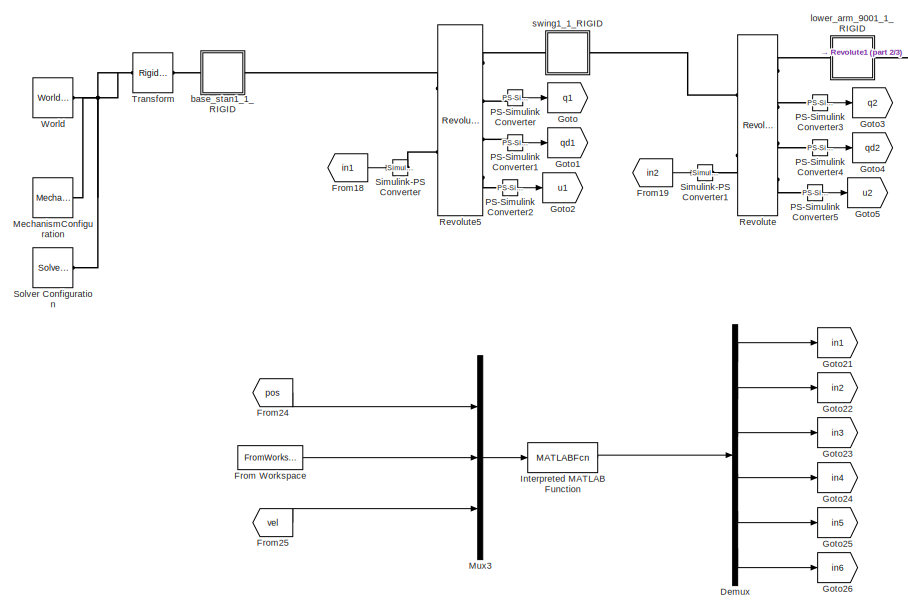
[diagram: Robot_torque_control - part 3/3, bottom left region]
BLOCK [SubSystem] Robot_torque_control
  Ports = []
  RequestExecContextInheritance = off
BLOCK [Demux] Robot_torque_control/Demux
  Outputs = 6
  Ports = [1, 6]
BLOCK [From] Robot_torque_control/From
  GotoTag = q1
BLOCK [FromWorkspace] Robot_torque_control/From Workspace
  VariableName = [tt' posd]
BLOCK [From] Robot_torque_control/From1
  GotoTag = q2
BLOCK [From] Robot_torque_control/From10
  GotoTag = qd5
BLOCK [From] Robot_torque_control/From11
  GotoTag = qd6
BLOCK [From] Robot_torque_control/From12
  GotoTag = u1
BLOCK [From] Robot_torque_control/From13
  GotoTag = u2
BLOCK [From] Robot_torque_control/From14
  GotoTag = u3
BLOCK [From] Robot_torque_control/From15
  GotoTag = u4
BLOCK [From] Robot_torque_control/From16
  GotoTag = u5
BLOCK [From] Robot_torque_control/From17
  GotoTag = u6
BLOCK [From] Robot_torque_control/From18
  GotoTag = in1
BLOCK [From] Robot_torque_control/From19
  GotoTag = in2
BLOCK [From] Robot_torque_control/From2
  GotoTag = q3
BLOCK [From] Robot_torque_control/From20
  GotoTag = in3
BLOCK [From] Robot_torque_control/From21
  GotoTag = in4
BLOCK [From] Robot_torque_control/From22
  GotoTag = in6
BLOCK [From] Robot_torque_control/From23
  GotoTag = in5
BLOCK [From] Robot_torque_control/From24
  GotoTag = pos
BLOCK [From] Robot_torque_control/From25
  GotoTag = vel
BLOCK [From] Robot_torque_control/From3
  GotoTag = q4
BLOCK [From] Robot_torque_control/From4
  GotoTag = q5
BLOCK [From] Robot_torque_control/From5
  GotoTag = q6
BLOCK [From] Robot_torque_control/From6
  GotoTag = qd1
BLOCK [From] Robot_torque_control/From7
  GotoTag = qd2
BLOCK [From] Robot_torque_control/From8
  GotoTag = qd3
BLOCK [From] Robot_torque_control/From9
  GotoTag = qd4
BLOCK [Goto] Robot_torque_control/Goto
  GotoTag = q1
BLOCK [Goto] Robot_torque_control/Goto1
  GotoTag = qd1
BLOCK [Goto] Robot_torque_control/Goto10
  GotoTag = qd4
BLOCK [Goto] Robot_torque_control/Goto11
  GotoTag = u4
BLOCK [Goto] Robot_torque_control/Goto12
  GotoTag = q5
BLOCK [Goto] Robot_torque_control/Goto13
  GotoTag = qd5
BLOCK [Goto] Robot_torque_control/Goto14
  GotoTag = u5
BLOCK [Goto] Robot_torque_control/Goto15
  GotoTag = q6
BLOCK [Goto] Robot_torque_control/Goto16
  GotoTag = qd6
BLOCK [Goto] Robot_torque_control/Goto17
  GotoTag = u6
BLOCK [Goto] Robot_torque_control/Goto18
  GotoTag = pos
BLOCK [Goto] Robot_torque_control/Goto19
  GotoTag = vel
BLOCK [Goto] Robot_torque_control/Goto2
  GotoTag = u1
BLOCK [Goto] Robot_torque_control/Goto20
  GotoTag = trq
BLOCK [Goto] Robot_torque_control/Goto21
  GotoTag = in1
BLOCK [Goto] Robot_torque_control/Goto22
  GotoTag = in2
BLOCK [Goto] Robot_torque_control/Goto23
  GotoTag = in3
BLOCK [Goto] Robot_torque_control/Goto24
  GotoTag = in4
BLOCK [Goto] Robot_torque_control/Goto25
  GotoTag = in5
BLOCK [Goto] Robot_torque_control/Goto26
  GotoTag = in6
BLOCK [Goto] Robot_torque_control/Goto3
  GotoTag = q2
BLOCK [Goto] Robot_torque_control/Goto4
  GotoTag = qd2
BLOCK [Goto] Robot_torque_control/Goto5
  GotoTag = u2
BLOCK [Goto] Robot_torque_control/Goto6
  GotoTag = q3
BLOCK [Goto] Robot_torque_control/Goto7
  GotoTag = qd3
BLOCK [Goto] Robot_torque_control/Goto8
  GotoTag = u3
BLOCK [Goto] Robot_torque_control/Goto9
  GotoTag = q4
BLOCK [MATLABFcn] Robot_torque_control/Interpreted MATLAB Function
  MATLABFcn = pd_gravity
  OutputDimensions = 6
  Ports = [1, 1]
BLOCK [Reference] Robot_torque_control/MechanismConfiguration  REF=sm_lib/Utilities/Mechanism
Configuration
  Ports = [0, 0, 0, 0, 0, 0, 1]
  SourceBlock = sm_lib/Utilities/Mechanism\nConfiguration
  SourceProductBaseCode = MS
  SourceType = Mechanism\nConfiguration
BLOCK [Mux] Robot_torque_control/Mux
  DisplayOption = bar
  Inputs = 6
  Ports = [6, 1]
BLOCK [Mux] Robot_torque_control/Mux1
  DisplayOption = bar
  Inputs = 6
  Ports = [6, 1]
BLOCK [Mux] Robot_torque_control/Mux2
  DisplayOption = bar
  Inputs = 6
  Ports = [6, 1]
BLOCK [Mux] Robot_torque_control/Mux3
  DisplayOption = bar
  Inputs = [6 6 6]
  Ports = [3, 1]
BLOCK [Reference] Robot_torque_control/PS-Simulink Converter  REF=nesl_utility/PS-Simulink
Converter
  Ports = [0, 1, 0, 0, 0, 1]
  SourceBlock = nesl_utility/PS-Simulink\nConverter
  SourceProductBaseCode = SS
  SourceType = PS-Simulink\nConverter
BLOCK [Reference] Robot_torque_control/PS-Simulink Converter1  REF=nesl_utility/PS-Simulink
Converter
  Ports = [0, 1, 0, 0, 0, 1]
  SourceBlock = nesl_utility/PS-Simulink\nConverter
  SourceProductBaseCode = SS
  SourceType = PS-Simulink\nConverter
BLOCK [Reference] Robot_torque_control/PS-Simulink Converter10  REF=nesl_utility/PS-Simulink
Converter
  Ports = [0, 1, 0, 0, 0, 1]
  SourceBlock = nesl_utility/PS-Simulink\nConverter
  SourceProductBaseCode = SS
  SourceType = PS-Simulink\nConverter
BLOCK [Reference] Robot_torque_control/PS-Simulink Converter11  REF=nesl_utility/PS-Simulink
Converter
  Ports = [0, 1, 0, 0, 0, 1]
  SourceBlock = nesl_utility/PS-Simulink\nConverter
  SourceProductBaseCode = SS
  SourceType = PS-Simulink\nConverter
BLOCK [Reference] Robot_torque_control/PS-Simulink Converter12  REF=nesl_utility/PS-Simulink
Converter
  Ports = [0, 1, 0, 0, 0, 1]
  SourceBlock = nesl_utility/PS-Simulink\nConverter
  SourceProductBaseCode = SS
  SourceType = PS-Simulink\nConverter
BLOCK [Reference] Robot_torque_control/PS-Simulink Converter13  REF=nesl_utility/PS-Simulink
Converter
  Ports = [0, 1, 0, 0, 0, 1]
  SourceBlock = nesl_utility/PS-Simulink\nConverter
  SourceProductBaseCode = SS
  SourceType = PS-Simulink\nConverter
BLOCK [Reference] Robot_torque_control/PS-Simulink Converter14  REF=nesl_utility/PS-Simulink
Converter
  Ports = [0, 1, 0, 0, 0, 1]
  SourceBlock = nesl_utility/PS-Simulink\nConverter
  SourceProductBaseCode = SS
  SourceType = PS-Simulink\nConverter
BLOCK [Reference] Robot_torque_control/PS-Simulink Converter15  REF=nesl_utility/PS-Simulink
Converter
  Ports = [0, 1, 0, 0, 0, 1]
  SourceBlock = nesl_utility/PS-Simulink\nConverter
  SourceProductBaseCode = SS
  SourceType = PS-Simulink\nConverter
BLOCK [Reference] Robot_torque_control/PS-Simulink Converter16  REF=nesl_utility/PS-Simulink
Converter
  Ports = [0, 1, 0, 0, 0, 1]
  SourceBlock = nesl_utility/PS-Simulink\nConverter
  SourceProductBaseCode = SS
  SourceType = PS-Simulink\nConverter
BLOCK [Reference] Robot_torque_control/PS-Simulink Converter17  REF=nesl_utility/PS-Simulink
Converter
  Ports = [0, 1, 0, 0, 0, 1]
  SourceBlock = nesl_utility/PS-Simulink\nConverter
  SourceProductBaseCode = SS
  SourceType = PS-Simulink\nConverter
BLOCK [Reference] Robot_torque_control/PS-Simulink Converter2  REF=nesl_utility/PS-Simulink
Converter
  Ports = [0, 1, 0, 0, 0, 1]
  SourceBlock = nesl_utility/PS-Simulink\nConverter
  SourceProductBaseCode = SS
  SourceType = PS-Simulink\nConverter
BLOCK [Reference] Robot_torque_control/PS-Simulink Converter3  REF=nesl_utility/PS-Simulink
Converter
  Ports = [0, 1, 0, 0, 0, 1]
  SourceBlock = nesl_utility/PS-Simulink\nConverter
  SourceProductBaseCode = SS
  SourceType = PS-Simulink\nConverter
BLOCK [Reference] Robot_torque_control/PS-Simulink Converter4  REF=nesl_utility/PS-Simulink
Converter
  Ports = [0, 1, 0, 0, 0, 1]
  SourceBlock = nesl_utility/PS-Simulink\nConverter
  SourceProductBaseCode = SS
  SourceType = PS-Simulink\nConverter
BLOCK [Reference] Robot_torque_control/PS-Simulink Converter5  REF=nesl_utility/PS-Simulink
Converter
  Ports = [0, 1, 0, 0, 0, 1]
  SourceBlock = nesl_utility/PS-Simulink\nConverter
  SourceProductBaseCode = SS
  SourceType = PS-Simulink\nConverter
BLOCK [Reference] Robot_torque_control/PS-Simulink Converter6  REF=nesl_utility/PS-Simulink
Converter
  Ports = [0, 1, 0, 0, 0, 1]
  SourceBlock = nesl_utility/PS-Simulink\nConverter
  SourceProductBaseCode = SS
  SourceType = PS-Simulink\nConverter
BLOCK [Reference] Robot_torque_control/PS-Simulink Converter7  REF=nesl_utility/PS-Simulink
Converter
  Ports = [0, 1, 0, 0, 0, 1]
  SourceBlock = nesl_utility/PS-Simulink\nConverter
  SourceProductBaseCode = SS
  SourceType = PS-Simulink\nConverter
BLOCK [Reference] Robot_torque_control/PS-Simulink Converter8  REF=nesl_utility/PS-Simulink
Converter
  Ports = [0, 1, 0, 0, 0, 1]
  SourceBlock = nesl_utility/PS-Simulink\nConverter
  SourceProductBaseCode = SS
  SourceType = PS-Simulink\nConverter
BLOCK [Reference] Robot_torque_control/PS-Simulink Converter9  REF=nesl_utility/PS-Simulink
Converter
  Ports = [0, 1, 0, 0, 0, 1]
  SourceBlock = nesl_utility/PS-Simulink\nConverter
  SourceProductBaseCode = SS
  SourceType = PS-Simulink\nConverter
BLOCK [SubSystem] Robot_torque_control/Part2_4_RIGID
  Ports = [0, 0, 0, 0, 0, 1]
  RequestExecContextInheritance = off
BLOCK [PMIOPort] Robot_torque_control/Part2_4_RIGID/F
  Side = Left
BLOCK [Reference] Robot_torque_control/Part2_4_RIGID/ReferenceFrame  REF=sm_lib/Frames and
Transforms/Reference
Frame
  Ports = [0, 0, 0, 0, 0, 0, 1]
  SourceBlock = sm_lib/Frames and\nTransforms/Reference\nFrame
  SourceProductBaseCode = MS
  SourceType = Reference\nFrame
BLOCK [Reference] Robot_torque_control/Part2_4_RIGID/Solid  REF=sm_lib/Body Elements/File Solid
  Ports = [0, 0, 0, 0, 0, 0, 1]
  SourceBlock = sm_lib/Body Elements/File Solid
  SourceProductBaseCode = MS
  SourceType = File Solid
BLOCK [Reference] Robot_torque_control/Part2_4_RIGID/Transform  REF=sm_lib/Frames and
Transforms/Rigid
Transform
  Ports = [0, 0, 0, 0, 0, 1, 1]
  SourceBlock = sm_lib/Frames and\nTransforms/Rigid\nTransform
  SourceProductBaseCode = MS
  SourceType = Rigid\nTransform
BLOCK [SubSystem] Robot_torque_control/Part2_5_RIGID
  Ports = [0, 0, 0, 0, 0, 1]
  RequestExecContextInheritance = off
BLOCK [PMIOPort] Robot_torque_control/Part2_5_RIGID/F
  Side = Left
BLOCK [Reference] Robot_torque_control/Part2_5_RIGID/ReferenceFrame  REF=sm_lib/Frames and
Transforms/Reference
Frame
  Ports = [0, 0, 0, 0, 0, 0, 1]
  SourceBlock = sm_lib/Frames and\nTransforms/Reference\nFrame
  SourceProductBaseCode = MS
  SourceType = Reference\nFrame
BLOCK [Reference] Robot_torque_control/Part2_5_RIGID/Solid  REF=sm_lib/Body Elements/File Solid
  Ports = [0, 0, 0, 0, 0, 0, 1]
  SourceBlock = sm_lib/Body Elements/File Solid
  SourceProductBaseCode = MS
  SourceType = File Solid
BLOCK [Reference] Robot_torque_control/Part2_5_RIGID/Transform  REF=sm_lib/Frames and
Transforms/Rigid
Transform
  Ports = [0, 0, 0, 0, 0, 1, 1]
  SourceBlock = sm_lib/Frames and\nTransforms/Rigid\nTransform
  SourceProductBaseCode = MS
  SourceType = Rigid\nTransform
BLOCK [Reference] Robot_torque_control/Revolute  REF=sm_lib/Joints/Revolute Joint
  Ports = [0, 0, 0, 0, 0, 2, 4]
  SourceBlock = sm_lib/Joints/Revolute Joint
  SourceProductBaseCode = MS
  SourceType = Revolute Joint
BLOCK [Reference] Robot_torque_control/Revolute1  REF=sm_lib/Joints/Revolute Joint
  Ports = [0, 0, 0, 0, 0, 2, 4]
  SourceBlock = sm_lib/Joints/Revolute Joint
  SourceProductBaseCode = MS
  SourceType = Revolute Joint
BLOCK [Reference] Robot_torque_control/Revolute2  REF=sm_lib/Joints/Revolute Joint
  Ports = [0, 0, 0, 0, 0, 2, 4]
  SourceBlock = sm_lib/Joints/Revolute Joint
  SourceProductBaseCode = MS
  SourceType = Revolute Joint
BLOCK [Reference] Robot_torque_control/Revolute3  REF=sm_lib/Joints/Revolute Joint
  Ports = [0, 0, 0, 0, 0, 2, 4]
  SourceBlock = sm_lib/Joints/Revolute Joint
  SourceProductBaseCode = MS
  SourceType = Revolute Joint
BLOCK [Reference] Robot_torque_control/Revolute4  REF=sm_lib/Joints/Revolute Joint
  Ports = [0, 0, 0, 0, 0, 2, 4]
  SourceBlock = sm_lib/Joints/Revolute Joint
  SourceProductBaseCode = MS
  SourceType = Revolute Joint
BLOCK [Reference] Robot_torque_control/Revolute5  REF=sm_lib/Joints/Revolute Joint
  Ports = [0, 0, 0, 0, 0, 2, 4]
  SourceBlock = sm_lib/Joints/Revolute Joint
  SourceProductBaseCode = MS
  SourceType = Revolute Joint
BLOCK [Scope] Robot_torque_control/Scope
  Floating = off
  NumInputPorts = 1
  Ports = [1]
  ScopeSpecificationString = Simulink.scopes.TimeScopeBlockCfg('CurrentConfiguration', extmgr.ConfigurationSet(extmgr.Configuration('Core','General UI',true),extmgr.Configuration('Core','Source UI',true),extmgr.Configuration('Sources','WiredSimulink',true),extmgr.Configuration('Visuals','Time Domain',true,'SerializedDisplays',{struct('MinYLimReal','-49.77887','MaxYLimReal','5.88321','YLabelReal','','MinYLimMag','0.00000','Max...<+1574ch>
BLOCK [Scope] Robot_torque_control/Scope1
  Floating = off
  NumInputPorts = 1
  Ports = [1]
  ScopeSpecificationString = Simulink.scopes.TimeScopeBlockCfg('CurrentConfiguration', extmgr.ConfigurationSet(extmgr.Configuration('Core','General UI',true),extmgr.Configuration('Core','Source UI',true),extmgr.Configuration('Sources','WiredSimulink',true,'DataLoggingVariableName','ScopeData1'),extmgr.Configuration('Visuals','Time Domain',true),extmgr.Configuration('Tools','Plot Navigation',true),extmgr.Configuration('Tools',...<+40ch>
BLOCK [Scope] Robot_torque_control/Scope2
  Floating = off
  NumInputPorts = 1
  Ports = [1]
  ScopeSpecificationString = Simulink.scopes.TimeScopeBlockCfg('CurrentConfiguration', extmgr.ConfigurationSet(extmgr.Configuration('Core','General UI',true),extmgr.Configuration('Core','Source UI',true),extmgr.Configuration('Sources','WiredSimulink',true,'DataLoggingVariableName','ScopeData2'),extmgr.Configuration('Visuals','Time Domain',true),extmgr.Configuration('Tools','Plot Navigation',true),extmgr.Configuration('Tools',...<+40ch>
BLOCK [Reference] Robot_torque_control/Simulink-PS Converter  REF=nesl_utility/Simulink-PS
Converter
  Ports = [1, 0, 0, 0, 0, 0, 1]
  SourceBlock = nesl_utility/Simulink-PS\nConverter
  SourceProductBaseCode = SS
  SourceType = Simulink-PS\nConverter
BLOCK [Reference] Robot_torque_control/Simulink-PS Converter1  REF=nesl_utility/Simulink-PS
Converter
  Ports = [1, 0, 0, 0, 0, 0, 1]
  SourceBlock = nesl_utility/Simulink-PS\nConverter
  SourceProductBaseCode = SS
  SourceType = Simulink-PS\nConverter
BLOCK [Reference] Robot_torque_control/Simulink-PS Converter2  REF=nesl_utility/Simulink-PS
Converter
  Ports = [1, 0, 0, 0, 0, 0, 1]
  SourceBlock = nesl_utility/Simulink-PS\nConverter
  SourceProductBaseCode = SS
  SourceType = Simulink-PS\nConverter
BLOCK [Reference] Robot_torque_control/Simulink-PS Converter3  REF=nesl_utility/Simulink-PS
Converter
  Ports = [1, 0, 0, 0, 0, 0, 1]
  SourceBlock = nesl_utility/Simulink-PS\nConverter
  SourceProductBaseCode = SS
  SourceType = Simulink-PS\nConverter
BLOCK [Reference] Robot_torque_control/Simulink-PS Converter4  REF=nesl_utility/Simulink-PS
Converter
  Ports = [1, 0, 0, 0, 0, 0, 1]
  SourceBlock = nesl_utility/Simulink-PS\nConverter
  SourceProductBaseCode = SS
  SourceType = Simulink-PS\nConverter
BLOCK [Reference] Robot_torque_control/Simulink-PS Converter5  REF=nesl_utility/Simulink-PS
Converter
  Ports = [1, 0, 0, 0, 0, 0, 1]
  SourceBlock = nesl_utility/Simulink-PS\nConverter
  SourceProductBaseCode = SS
  SourceType = Simulink-PS\nConverter
BLOCK [Reference] Robot_torque_control/Solver Configuration  REF=nesl_utility/Solver
Configuration
  Ports = [0, 0, 0, 0, 0, 0, 1]
  SourceBlock = nesl_utility/Solver\nConfiguration
  SourceProductBaseCode = SS
  SourceType = Solver\nConfiguration
BLOCK [Reference] Robot_torque_control/Transform  REF=sm_lib/Frames and
Transforms/Rigid
Transform
  Ports = [0, 0, 0, 0, 0, 1, 1]
  SourceBlock = sm_lib/Frames and\nTransforms/Rigid\nTransform
  SourceProductBaseCode = MS
  SourceType = Rigid\nTransform
BLOCK [Reference] Robot_torque_control/World  REF=sm_lib/Frames and
Transforms/World Frame
  Ports = [0, 0, 0, 0, 0, 0, 1]
  SourceBlock = sm_lib/Frames and\nTransforms/World Frame
  SourceProductBaseCode = MS
  SourceType = World Frame
BLOCK [SubSystem] Robot_torque_control/base_stan1_1_RIGID
  Ports = [0, 0, 0, 0, 0, 1, 1]
  RequestExecContextInheritance = off
BLOCK [PMIOPort] Robot_torque_control/base_stan1_1_RIGID/F
  Port = 2
  Side = Right
BLOCK [PMIOPort] Robot_torque_control/base_stan1_1_RIGID/F1
  Side = Left
BLOCK [Reference] Robot_torque_control/base_stan1_1_RIGID/ReferenceFrame  REF=sm_lib/Frames and
Transforms/Reference
Frame
  Ports = [0, 0, 0, 0, 0, 0, 1]
  SourceBlock = sm_lib/Frames and\nTransforms/Reference\nFrame
  SourceProductBaseCode = MS
  SourceType = Reference\nFrame
BLOCK [Reference] Robot_torque_control/base_stan1_1_RIGID/Solid  REF=sm_lib/Body Elements/File Solid
  Ports = [0, 0, 0, 0, 0, 0, 1]
  SourceBlock = sm_lib/Body Elements/File Solid
  SourceProductBaseCode = MS
  SourceType = File Solid
BLOCK [Reference] Robot_torque_control/base_stan1_1_RIGID/Transform  REF=sm_lib/Frames and
Transforms/Rigid
Transform
  Ports = [0, 0, 0, 0, 0, 1, 1]
  SourceBlock = sm_lib/Frames and\nTransforms/Rigid\nTransform
  SourceProductBaseCode = MS
  SourceType = Rigid\nTransform
BLOCK [SubSystem] Robot_torque_control/disc1_1_RIGID
  Ports = [0, 0, 0, 0, 0, 1, 2]
  RequestExecContextInheritance = off
BLOCK [PMIOPort] Robot_torque_control/disc1_1_RIGID/F
  Side = Left
BLOCK [PMIOPort] Robot_torque_control/disc1_1_RIGID/F1
  Port = 3
  Side = Right
BLOCK [PMIOPort] Robot_torque_control/disc1_1_RIGID/F2
  Port = 2
  Side = Right
BLOCK [Reference] Robot_torque_control/disc1_1_RIGID/ReferenceFrame  REF=sm_lib/Frames and
Transforms/Reference
Frame
  Ports = [0, 0, 0, 0, 0, 0, 1]
  SourceBlock = sm_lib/Frames and\nTransforms/Reference\nFrame
  SourceProductBaseCode = MS
  SourceType = Reference\nFrame
BLOCK [Reference] Robot_torque_control/disc1_1_RIGID/Solid  REF=sm_lib/Body Elements/File Solid
  Ports = [0, 0, 0, 0, 0, 0, 1]
  SourceBlock = sm_lib/Body Elements/File Solid
  SourceProductBaseCode = MS
  SourceType = File Solid
BLOCK [Reference] Robot_torque_control/disc1_1_RIGID/Transform  REF=sm_lib/Frames and
Transforms/Rigid
Transform
  Ports = [0, 0, 0, 0, 0, 1, 1]
  SourceBlock = sm_lib/Frames and\nTransforms/Rigid\nTransform
  SourceProductBaseCode = MS
  SourceType = Rigid\nTransform
BLOCK [Reference] Robot_torque_control/disc1_1_RIGID/Transform1  REF=sm_lib/Frames and
Transforms/Rigid
Transform
  Ports = [0, 0, 0, 0, 0, 1, 1]
  SourceBlock = sm_lib/Frames and\nTransforms/Rigid\nTransform
  SourceProductBaseCode = MS
  SourceType = Rigid\nTransform
BLOCK [Reference] Robot_torque_control/disc1_1_RIGID/Transform2  REF=sm_lib/Frames and
Transforms/Rigid
Transform
  Ports = [0, 0, 0, 0, 0, 1, 1]
  SourceBlock = sm_lib/Frames and\nTransforms/Rigid\nTransform
  SourceProductBaseCode = MS
  SourceType = Rigid\nTransform
BLOCK [SubSystem] Robot_torque_control/housing_9001_1_RIGID
  Ports = [0, 0, 0, 0, 0, 1, 1]
  RequestExecContextInheritance = off
BLOCK [PMIOPort] Robot_torque_control/housing_9001_1_RIGID/F
  Side = Left
BLOCK [PMIOPort] Robot_torque_control/housing_9001_1_RIGID/F1
  Port = 2
  Side = Right
BLOCK [Reference] Robot_torque_control/housing_9001_1_RIGID/ReferenceFrame  REF=sm_lib/Frames and
Transforms/Reference
Frame
  Ports = [0, 0, 0, 0, 0, 0, 1]
  SourceBlock = sm_lib/Frames and\nTransforms/Reference\nFrame
  SourceProductBaseCode = MS
  SourceType = Reference\nFrame
BLOCK [Reference] Robot_torque_control/housing_9001_1_RIGID/Solid  REF=sm_lib/Body Elements/File Solid
  Ports = [0, 0, 0, 0, 0, 0, 1]
  SourceBlock = sm_lib/Body Elements/File Solid
  SourceProductBaseCode = MS
  SourceType = File Solid
BLOCK [Reference] Robot_torque_control/housing_9001_1_RIGID/Transform  REF=sm_lib/Frames and
Transforms/Rigid
Transform
  Ports = [0, 0, 0, 0, 0, 1, 1]
  SourceBlock = sm_lib/Frames and\nTransforms/Rigid\nTransform
  SourceProductBaseCode = MS
  SourceType = Rigid\nTransform
BLOCK [Reference] Robot_torque_control/housing_9001_1_RIGID/Transform1  REF=sm_lib/Frames and
Transforms/Rigid
Transform
  Ports = [0, 0, 0, 0, 0, 1, 1]
  SourceBlock = sm_lib/Frames and\nTransforms/Rigid\nTransform
  SourceProductBaseCode = MS
  SourceType = Rigid\nTransform
BLOCK [SubSystem] Robot_torque_control/lower_arm_9001_1_RIGID
  Ports = [0, 0, 0, 0, 0, 1, 1]
  RequestExecContextInheritance = off
BLOCK [PMIOPort] Robot_torque_control/lower_arm_9001_1_RIGID/F
  Side = Left
BLOCK [PMIOPort] Robot_torque_control/lower_arm_9001_1_RIGID/F1
  Port = 2
  Side = Right
BLOCK [Reference] Robot_torque_control/lower_arm_9001_1_RIGID/ReferenceFrame  REF=sm_lib/Frames and
Transforms/Reference
Frame
  Ports = [0, 0, 0, 0, 0, 0, 1]
  SourceBlock = sm_lib/Frames and\nTransforms/Reference\nFrame
  SourceProductBaseCode = MS
  SourceType = Reference\nFrame
BLOCK [Reference] Robot_torque_control/lower_arm_9001_1_RIGID/Solid  REF=sm_lib/Body Elements/File Solid
  Ports = [0, 0, 0, 0, 0, 0, 1]
  SourceBlock = sm_lib/Body Elements/File Solid
  SourceProductBaseCode = MS
  SourceType = File Solid
BLOCK [Reference] Robot_torque_control/lower_arm_9001_1_RIGID/Transform  REF=sm_lib/Frames and
Transforms/Rigid
Transform
  Ports = [0, 0, 0, 0, 0, 1, 1]
  SourceBlock = sm_lib/Frames and\nTransforms/Rigid\nTransform
  SourceProductBaseCode = MS
  SourceType = Rigid\nTransform
BLOCK [Reference] Robot_torque_control/lower_arm_9001_1_RIGID/Transform1  REF=sm_lib/Frames and
Transforms/Rigid
Transform
  Ports = [0, 0, 0, 0, 0, 1, 1]
  SourceBlock = sm_lib/Frames and\nTransforms/Rigid\nTransform
  SourceProductBaseCode = MS
  SourceType = Rigid\nTransform
BLOCK [SubSystem] Robot_torque_control/swing1_1_RIGID
  Ports = [0, 0, 0, 0, 0, 1, 1]
  RequestExecContextInheritance = off
BLOCK [PMIOPort] Robot_torque_control/swing1_1_RIGID/F
  Port = 2
  Side = Right
BLOCK [PMIOPort] Robot_torque_control/swing1_1_RIGID/F1
  Side = Left
BLOCK [Reference] Robot_torque_control/swing1_1_RIGID/ReferenceFrame  REF=sm_lib/Frames and
Transforms/Reference
Frame
  Ports = [0, 0, 0, 0, 0, 0, 1]
  SourceBlock = sm_lib/Frames and\nTransforms/Reference\nFrame
  SourceProductBaseCode = MS
  SourceType = Reference\nFrame
BLOCK [Reference] Robot_torque_control/swing1_1_RIGID/Solid  REF=sm_lib/Body Elements/File Solid
  Ports = [0, 0, 0, 0, 0, 0, 1]
  SourceBlock = sm_lib/Body Elements/File Solid
  SourceProductBaseCode = MS
  SourceType = File Solid
BLOCK [Reference] Robot_torque_control/swing1_1_RIGID/Transform  REF=sm_lib/Frames and
Transforms/Rigid
Transform
  Ports = [0, 0, 0, 0, 0, 1, 1]
  SourceBlock = sm_lib/Frames and\nTransforms/Rigid\nTransform
  SourceProductBaseCode = MS
  SourceType = Rigid\nTransform
BLOCK [Reference] Robot_torque_control/swing1_1_RIGID/Transform1  REF=sm_lib/Frames and
Transforms/Rigid
Transform
  Ports = [0, 0, 0, 0, 0, 1, 1]
  SourceBlock = sm_lib/Frames and\nTransforms/Rigid\nTransform
  SourceProductBaseCode = MS
  SourceType = Rigid\nTransform
BLOCK [SubSystem] Robot_torque_control/tilt_9001_1_RIGID
  Ports = [0, 0, 0, 0, 0, 1, 1]
  RequestExecContextInheritance = off
BLOCK [PMIOPort] Robot_torque_control/tilt_9001_1_RIGID/F
  Port = 2
  Side = Right
BLOCK [PMIOPort] Robot_torque_control/tilt_9001_1_RIGID/F1
  Side = Left
BLOCK [Reference] Robot_torque_control/tilt_9001_1_RIGID/ReferenceFrame  REF=sm_lib/Frames and
Transforms/Reference
Frame
  Ports = [0, 0, 0, 0, 0, 0, 1]
  SourceBlock = sm_lib/Frames and\nTransforms/Reference\nFrame
  SourceProductBaseCode = MS
  SourceType = Reference\nFrame
BLOCK [Reference] Robot_torque_control/tilt_9001_1_RIGID/Solid  REF=sm_lib/Body Elements/File Solid
  Ports = [0, 0, 0, 0, 0, 0, 1]
  SourceBlock = sm_lib/Body Elements/File Solid
  SourceProductBaseCode = MS
  SourceType = File Solid
BLOCK [Reference] Robot_torque_control/tilt_9001_1_RIGID/Transform  REF=sm_lib/Frames and
Transforms/Rigid
Transform
  Ports = [0, 0, 0, 0, 0, 1, 1]
  SourceBlock = sm_lib/Frames and\nTransforms/Rigid\nTransform
  SourceProductBaseCode = MS
  SourceType = Rigid\nTransform
BLOCK [Reference] Robot_torque_control/tilt_9001_1_RIGID/Transform1  REF=sm_lib/Frames and
Transforms/Rigid
Transform
  Ports = [0, 0, 0, 0, 0, 1, 1]
  SourceBlock = sm_lib/Frames and\nTransforms/Rigid\nTransform
  SourceProductBaseCode = MS
  SourceType = Rigid\nTransform
BLOCK [SubSystem] Robot_torque_control/tubular_9001_1_RIGID
  Ports = [0, 0, 0, 0, 0, 1, 1]
  RequestExecContextInheritance = off
BLOCK [PMIOPort] Robot_torque_control/tubular_9001_1_RIGID/F
  Port = 2
  Side = Right
BLOCK [PMIOPort] Robot_torque_control/tubular_9001_1_RIGID/F1
  Side = Left
BLOCK [Reference] Robot_torque_control/tubular_9001_1_RIGID/ReferenceFrame  REF=sm_lib/Frames and
Transforms/Reference
Frame
  Ports = [0, 0, 0, 0, 0, 0, 1]
  SourceBlock = sm_lib/Frames and\nTransforms/Reference\nFrame
  SourceProductBaseCode = MS
  SourceType = Reference\nFrame
BLOCK [Reference] Robot_torque_control/tubular_9001_1_RIGID/Solid  REF=sm_lib/Body Elements/File Solid
  Ports = [0, 0, 0, 0, 0, 0, 1]
  SourceBlock = sm_lib/Body Elements/File Solid
  SourceProductBaseCode = MS
  SourceType = File Solid
BLOCK [Reference] Robot_torque_control/tubular_9001_1_RIGID/Transform  REF=sm_lib/Frames and
Transforms/Rigid
Transform
  Ports = [0, 0, 0, 0, 0, 1, 1]
  SourceBlock = sm_lib/Frames and\nTransforms/Rigid\nTransform
  SourceProductBaseCode = MS
  SourceType = Rigid\nTransform
BLOCK [Reference] Robot_torque_control/tubular_9001_1_RIGID/Transform1  REF=sm_lib/Frames and
Transforms/Rigid
Transform
  Ports = [0, 0, 0, 0, 0, 1, 1]
  SourceBlock = sm_lib/Frames and\nTransforms/Rigid\nTransform
  SourceProductBaseCode = MS
  SourceType = Rigid\nTransform
LINE Robot_position_control/Demux:1 -> Robot_position_control/Goto21:1
LINE Robot_position_control/Demux:2 -> Robot_position_control/Goto22:1
LINE Robot_position_control/Demux:3 -> Robot_position_control/Goto23:1
LINE Robot_position_control/Demux:4 -> Robot_position_control/Goto24:1
LINE Robot_position_control/Demux:5 -> Robot_position_control/Goto25:1
LINE Robot_position_control/Demux:6 -> Robot_position_control/Goto26:1
LINE Robot_position_control/From Workspace:1 -> Robot_position_control/Demux:1
LINE Robot_position_control/From10:1 -> Robot_position_control/Mux1:5
LINE Robot_position_control/From11:1 -> Robot_position_control/Mux1:6
LINE Robot_position_control/From12:1 -> Robot_position_control/Mux2:1
LINE Robot_position_control/From13:1 -> Robot_position_control/Mux2:2
LINE Robot_position_control/From14:1 -> Robot_position_control/Mux2:3
LINE Robot_position_control/From15:1 -> Robot_position_control/Mux2:4
LINE Robot_position_control/From16:1 -> Robot_position_control/Mux2:5
LINE Robot_position_control/From17:1 -> Robot_position_control/Mux2:6
LINE Robot_position_control/From18:1 -> Robot_position_control/Simulink-PS Converter:1
LINE Robot_position_control/From19:1 -> Robot_position_control/Simulink-PS Converter1:1
LINE Robot_position_control/From1:1 -> Robot_position_control/Mux:2
LINE Robot_position_control/From20:1 -> Robot_position_control/Simulink-PS Converter2:1
LINE Robot_position_control/From21:1 -> Robot_position_control/Simulink-PS Converter3:1
LINE Robot_position_control/From22:1 -> Robot_position_control/Simulink-PS Converter4:1
LINE Robot_position_control/From23:1 -> Robot_position_control/Simulink-PS Converter5:1
LINE Robot_position_control/From2:1 -> Robot_position_control/Mux:3
LINE Robot_position_control/From3:1 -> Robot_position_control/Mux:4
LINE Robot_position_control/From4:1 -> Robot_position_control/Mux:5
LINE Robot_position_control/From5:1 -> Robot_position_control/Mux:6
LINE Robot_position_control/From6:1 -> Robot_position_control/Mux1:1
LINE Robot_position_control/From7:1 -> Robot_position_control/Mux1:2
LINE Robot_position_control/From8:1 -> Robot_position_control/Mux1:3
LINE Robot_position_control/From9:1 -> Robot_position_control/Mux1:4
LINE Robot_position_control/From:1 -> Robot_position_control/Mux:1
NET Robot_position_control/Mux1:1 -> Robot_position_control/Goto19:1, Robot_position_control/Scope1:1
NET Robot_position_control/Mux2:1 -> Robot_position_control/Goto20:1, Robot_position_control/Scope:1
NET Robot_position_control/Mux:1 -> Robot_position_control/Goto18:1, Robot_position_control/Scope2:1
LINE Robot_position_control/PS-Simulink Converter10:1 -> Robot_position_control/Goto10:1
LINE Robot_position_control/PS-Simulink Converter11:1 -> Robot_position_control/Goto11:1
LINE Robot_position_control/PS-Simulink Converter12:1 -> Robot_position_control/Goto12:1
LINE Robot_position_control/PS-Simulink Converter13:1 -> Robot_position_control/Goto13:1
LINE Robot_position_control/PS-Simulink Converter14:1 -> Robot_position_control/Goto14:1
LINE Robot_position_control/PS-Simulink Converter15:1 -> Robot_position_control/Goto15:1
LINE Robot_position_control/PS-Simulink Converter16:1 -> Robot_position_control/Goto16:1
LINE Robot_position_control/PS-Simulink Converter17:1 -> Robot_position_control/Goto17:1
LINE Robot_position_control/PS-Simulink Converter1:1 -> Robot_position_control/Goto1:1
LINE Robot_position_control/PS-Simulink Converter2:1 -> Robot_position_control/Goto2:1
LINE Robot_position_control/PS-Simulink Converter3:1 -> Robot_position_control/Goto3:1
LINE Robot_position_control/PS-Simulink Converter4:1 -> Robot_position_control/Goto4:1
LINE Robot_position_control/PS-Simulink Converter5:1 -> Robot_position_control/Goto5:1
LINE Robot_position_control/PS-Simulink Converter6:1 -> Robot_position_control/Goto6:1
LINE Robot_position_control/PS-Simulink Converter7:1 -> Robot_position_control/Goto7:1
LINE Robot_position_control/PS-Simulink Converter8:1 -> Robot_position_control/Goto8:1
LINE Robot_position_control/PS-Simulink Converter9:1 -> Robot_position_control/Goto9:1
LINE Robot_position_control/PS-Simulink Converter:1 -> Robot_position_control/Goto:1
LINE Robot_torque_control/Demux:1 -> Robot_torque_control/Goto21:1
LINE Robot_torque_control/Demux:2 -> Robot_torque_control/Goto22:1
LINE Robot_torque_control/Demux:3 -> Robot_torque_control/Goto23:1
LINE Robot_torque_control/Demux:4 -> Robot_torque_control/Goto24:1
LINE Robot_torque_control/Demux:5 -> Robot_torque_control/Goto25:1
LINE Robot_torque_control/Demux:6 -> Robot_torque_control/Goto26:1
LINE Robot_torque_control/From Workspace:1 -> Robot_torque_control/Mux3:2
LINE Robot_torque_control/From10:1 -> Robot_torque_control/Mux1:5
LINE Robot_torque_control/From11:1 -> Robot_torque_control/Mux1:6
LINE Robot_torque_control/From12:1 -> Robot_torque_control/Mux2:1
LINE Robot_torque_control/From13:1 -> Robot_torque_control/Mux2:2
LINE Robot_torque_control/From14:1 -> Robot_torque_control/Mux2:3
LINE Robot_torque_control/From15:1 -> Robot_torque_control/Mux2:4
LINE Robot_torque_control/From16:1 -> Robot_torque_control/Mux2:5
LINE Robot_torque_control/From17:1 -> Robot_torque_control/Mux2:6
LINE Robot_torque_control/From18:1 -> Robot_torque_control/Simulink-PS Converter:1
LINE Robot_torque_control/From19:1 -> Robot_torque_control/Simulink-PS Converter1:1
LINE Robot_torque_control/From1:1 -> Robot_torque_control/Mux:2
LINE Robot_torque_control/From20:1 -> Robot_torque_control/Simulink-PS Converter2:1
LINE Robot_torque_control/From21:1 -> Robot_torque_control/Simulink-PS Converter3:1
LINE Robot_torque_control/From22:1 -> Robot_torque_control/Simulink-PS Converter4:1
LINE Robot_torque_control/From23:1 -> Robot_torque_control/Simulink-PS Converter5:1
LINE Robot_torque_control/From24:1 -> Robot_torque_control/Mux3:1
LINE Robot_torque_control/From25:1 -> Robot_torque_control/Mux3:3
LINE Robot_torque_control/From2:1 -> Robot_torque_control/Mux:3
LINE Robot_torque_control/From3:1 -> Robot_torque_control/Mux:4
LINE Robot_torque_control/From4:1 -> Robot_torque_control/Mux:5
LINE Robot_torque_control/From5:1 -> Robot_torque_control/Mux:6
LINE Robot_torque_control/From6:1 -> Robot_torque_control/Mux1:1
LINE Robot_torque_control/From7:1 -> Robot_torque_control/Mux1:2
LINE Robot_torque_control/From8:1 -> Robot_torque_control/Mux1:3
LINE Robot_torque_control/From9:1 -> Robot_torque_control/Mux1:4
LINE Robot_torque_control/From:1 -> Robot_torque_control/Mux:1
LINE Robot_torque_control/Interpreted MATLAB Function:1 -> Robot_torque_control/Demux:1
NET Robot_torque_control/Mux1:1 -> Robot_torque_control/Goto19:1, Robot_torque_control/Scope1:1
NET Robot_torque_control/Mux2:1 -> Robot_torque_control/Goto20:1, Robot_torque_control/Scope:1
LINE Robot_torque_control/Mux3:1 -> Robot_torque_control/Interpreted MATLAB Function:1
NET Robot_torque_control/Mux:1 -> Robot_torque_control/Goto18:1, Robot_torque_control/Scope2:1
LINE Robot_torque_control/PS-Simulink Converter10:1 -> Robot_torque_control/Goto10:1
LINE Robot_torque_control/PS-Simulink Converter11:1 -> Robot_torque_control/Goto11:1
LINE Robot_torque_control/PS-Simulink Converter12:1 -> Robot_torque_control/Goto12:1
LINE Robot_torque_control/PS-Simulink Converter13:1 -> Robot_torque_control/Goto13:1
LINE Robot_torque_control/PS-Simulink Converter14:1 -> Robot_torque_control/Goto14:1
LINE Robot_torque_control/PS-Simulink Converter15:1 -> Robot_torque_control/Goto15:1
LINE Robot_torque_control/PS-Simulink Converter16:1 -> Robot_torque_control/Goto16:1
LINE Robot_torque_control/PS-Simulink Converter17:1 -> Robot_torque_control/Goto17:1
LINE Robot_torque_control/PS-Simulink Converter1:1 -> Robot_torque_control/Goto1:1
LINE Robot_torque_control/PS-Simulink Converter2:1 -> Robot_torque_control/Goto2:1
LINE Robot_torque_control/PS-Simulink Converter3:1 -> Robot_torque_control/Goto3:1
LINE Robot_torque_control/PS-Simulink Converter4:1 -> Robot_torque_control/Goto4:1
LINE Robot_torque_control/PS-Simulink Converter5:1 -> Robot_torque_control/Goto5:1
LINE Robot_torque_control/PS-Simulink Converter6:1 -> Robot_torque_control/Goto6:1
LINE Robot_torque_control/PS-Simulink Converter7:1 -> Robot_torque_control/Goto7:1
LINE Robot_torque_control/PS-Simulink Converter8:1 -> Robot_torque_control/Goto8:1
LINE Robot_torque_control/PS-Simulink Converter9:1 -> Robot_torque_control/Goto9:1
LINE Robot_torque_control/PS-Simulink Converter:1 -> Robot_torque_control/Goto:1
PNET net1: Robot_position_control/MechanismConfiguration:RConn1 -- Robot_position_control/Solver Configuration:RConn1 -- Robot_position_control/Transform:LConn1 -- Robot_position_control/World:RConn1
PLINE Robot_position_control/PS-Simulink Converter10:LConn1 -- Robot_position_control/Revolute4:RConn3
PLINE Robot_position_control/PS-Simulink Converter11:LConn1 -- Robot_position_control/Revolute4:RConn4
PLINE Robot_position_control/PS-Simulink Converter12:LConn1 -- Robot_position_control/Revolute3:RConn2
PLINE Robot_position_control/PS-Simulink Converter13:LConn1 -- Robot_position_control/Revolute3:RConn3
PLINE Robot_position_control/PS-Simulink Converter14:LConn1 -- Robot_position_control/Revolute3:RConn4
PLINE Robot_position_control/PS-Simulink Converter15:LConn1 -- Robot_position_control/Revolute2:RConn2
PLINE Robot_position_control/PS-Simulink Converter16:LConn1 -- Robot_position_control/Revolute2:RConn3
PLINE Robot_position_control/PS-Simulink Converter17:LConn1 -- Robot_position_control/Revolute2:RConn4
PLINE Robot_position_control/PS-Simulink Converter1:LConn1 -- Robot_position_control/Revolute5:RConn3
PLINE Robot_position_control/PS-Simulink Converter2:LConn1 -- Robot_position_control/Revolute5:RConn4
PLINE Robot_position_control/PS-Simulink Converter3:LConn1 -- Robot_position_control/Revolute:RConn2
PLINE Robot_position_control/PS-Simulink Converter4:LConn1 -- Robot_position_control/Revolute:RConn3
PLINE Robot_position_control/PS-Simulink Converter5:LConn1 -- Robot_position_control/Revolute:RConn4
PLINE Robot_position_control/PS-Simulink Converter6:LConn1 -- Robot_position_control/Revolute1:RConn2
PLINE Robot_position_control/PS-Simulink Converter7:LConn1 -- Robot_position_control/Revolute1:RConn3
PLINE Robot_position_control/PS-Simulink Converter8:LConn1 -- Robot_position_control/Revolute1:RConn4
PLINE Robot_position_control/PS-Simulink Converter9:LConn1 -- Robot_position_control/Revolute4:RConn2
PLINE Robot_position_control/PS-Simulink Converter:LConn1 -- Robot_position_control/Revolute5:RConn2
PLINE Robot_position_control/Part2_4_RIGID/F:RConn1 -- Robot_position_control/Part2_4_RIGID/Transform:RConn1
PNET net2: Robot_position_control/Part2_4_RIGID/ReferenceFrame:RConn1 -- Robot_position_control/Part2_4_RIGID/Solid:RConn1 -- Robot_position_control/Part2_4_RIGID/Transform:LConn1
PLINE Robot_position_control/Part2_4_RIGID:LConn1 -- Robot_position_control/disc1_1_RIGID:RConn2
PLINE Robot_position_control/Part2_5_RIGID/F:RConn1 -- Robot_position_control/Part2_5_RIGID/Transform:RConn1
PNET net3: Robot_position_control/Part2_5_RIGID/ReferenceFrame:RConn1 -- Robot_position_control/Part2_5_RIGID/Solid:RConn1 -- Robot_position_control/Part2_5_RIGID/Transform:LConn1
PLINE Robot_position_control/Part2_5_RIGID:LConn1 -- Robot_position_control/disc1_1_RIGID:RConn1
PLINE Robot_position_control/Revolute1:LConn1 -- Robot_position_control/lower_arm_9001_1_RIGID:RConn1
PLINE Robot_position_control/Revolute1:LConn2 -- Robot_position_control/Simulink-PS Converter2:RConn1
PLINE Robot_position_control/Revolute1:RConn1 -- Robot_position_control/housing_9001_1_RIGID:LConn1
PLINE Robot_position_control/Revolute2:LConn1 -- Robot_position_control/tilt_9001_1_RIGID:RConn1
PLINE Robot_position_control/Revolute2:LConn2 -- Robot_position_control/Simulink-PS Converter4:RConn1
PLINE Robot_position_control/Revolute2:RConn1 -- Robot_position_control/disc1_1_RIGID:LConn1
PLINE Robot_position_control/Revolute3:LConn1 -- Robot_position_control/tubular_9001_1_RIGID:RConn1
PLINE Robot_position_control/Revolute3:LConn2 -- Robot_position_control/Simulink-PS Converter5:RConn1
PLINE Robot_position_control/Revolute3:RConn1 -- Robot_position_control/tilt_9001_1_RIGID:LConn1
PLINE Robot_position_control/Revolute4:LConn1 -- Robot_position_control/housing_9001_1_RIGID:RConn1
PLINE Robot_position_control/Revolute4:LConn2 -- Robot_position_control/Simulink-PS Converter3:RConn1
PLINE Robot_position_control/Revolute4:RConn1 -- Robot_position_control/tubular_9001_1_RIGID:LConn1
PLINE Robot_position_control/Revolute5:LConn1 -- Robot_position_control/base_stan1_1_RIGID:RConn1
PLINE Robot_position_control/Revolute5:LConn2 -- Robot_position_control/Simulink-PS Converter:RConn1
PLINE Robot_position_control/Revolute5:RConn1 -- Robot_position_control/swing1_1_RIGID:LConn1
PLINE Robot_position_control/Revolute:LConn1 -- Robot_position_control/swing1_1_RIGID:RConn1
PLINE Robot_position_control/Revolute:LConn2 -- Robot_position_control/Simulink-PS Converter1:RConn1
PLINE Robot_position_control/Revolute:RConn1 -- Robot_position_control/lower_arm_9001_1_RIGID:LConn1
PLINE Robot_position_control/Transform:RConn1 -- Robot_position_control/base_stan1_1_RIGID:LConn1
PNET net4: Robot_position_control/base_stan1_1_RIGID/F1:RConn1 -- Robot_position_control/base_stan1_1_RIGID/ReferenceFrame:RConn1 -- Robot_position_control/base_stan1_1_RIGID/Solid:RConn1 -- Robot_position_control/base_stan1_1_RIGID/Transform:LConn1
PLINE Robot_position_control/base_stan1_1_RIGID/F:RConn1 -- Robot_position_control/base_stan1_1_RIGID/Transform:RConn1
PLINE Robot_position_control/disc1_1_RIGID/F1:RConn1 -- Robot_position_control/disc1_1_RIGID/Transform1:RConn1
PLINE Robot_position_control/disc1_1_RIGID/F2:RConn1 -- Robot_position_control/disc1_1_RIGID/Transform2:RConn1
PLINE Robot_position_control/disc1_1_RIGID/F:RConn1 -- Robot_position_control/disc1_1_RIGID/Transform:RConn1
PNET net5: Robot_position_control/disc1_1_RIGID/ReferenceFrame:RConn1 -- Robot_position_control/disc1_1_RIGID/Solid:RConn1 -- Robot_position_control/disc1_1_RIGID/Transform1:LConn1 -- Robot_position_control/disc1_1_RIGID/Transform2:LConn1 -- Robot_position_control/disc1_1_RIGID/Transform:LConn1
PLINE Robot_position_control/housing_9001_1_RIGID/F1:RConn1 -- Robot_position_control/housing_9001_1_RIGID/Transform1:RConn1
PLINE Robot_position_control/housing_9001_1_RIGID/F:RConn1 -- Robot_position_control/housing_9001_1_RIGID/Transform:RConn1
PNET net6: Robot_position_control/housing_9001_1_RIGID/ReferenceFrame:RConn1 -- Robot_position_control/housing_9001_1_RIGID/Solid:RConn1 -- Robot_position_control/housing_9001_1_RIGID/Transform1:LConn1 -- Robot_position_control/housing_9001_1_RIGID/Transform:LConn1
PLINE Robot_position_control/lower_arm_9001_1_RIGID/F1:RConn1 -- Robot_position_control/lower_arm_9001_1_RIGID/Transform1:RConn1
PLINE Robot_position_control/lower_arm_9001_1_RIGID/F:RConn1 -- Robot_position_control/lower_arm_9001_1_RIGID/Transform:RConn1
PNET net7: Robot_position_control/lower_arm_9001_1_RIGID/ReferenceFrame:RConn1 -- Robot_position_control/lower_arm_9001_1_RIGID/Solid:RConn1 -- Robot_position_control/lower_arm_9001_1_RIGID/Transform1:LConn1 -- Robot_position_control/lower_arm_9001_1_RIGID/Transform:LConn1
PLINE Robot_position_control/swing1_1_RIGID/F1:RConn1 -- Robot_position_control/swing1_1_RIGID/Transform1:RConn1
PLINE Robot_position_control/swing1_1_RIGID/F:RConn1 -- Robot_position_control/swing1_1_RIGID/Transform:RConn1
PNET net8: Robot_position_control/swing1_1_RIGID/ReferenceFrame:RConn1 -- Robot_position_control/swing1_1_RIGID/Solid:RConn1 -- Robot_position_control/swing1_1_RIGID/Transform1:LConn1 -- Robot_position_control/swing1_1_RIGID/Transform:LConn1
PLINE Robot_position_control/tilt_9001_1_RIGID/F1:RConn1 -- Robot_position_control/tilt_9001_1_RIGID/Transform1:RConn1
PLINE Robot_position_control/tilt_9001_1_RIGID/F:RConn1 -- Robot_position_control/tilt_9001_1_RIGID/Transform:RConn1
PNET net9: Robot_position_control/tilt_9001_1_RIGID/ReferenceFrame:RConn1 -- Robot_position_control/tilt_9001_1_RIGID/Solid:RConn1 -- Robot_position_control/tilt_9001_1_RIGID/Transform1:LConn1 -- Robot_position_control/tilt_9001_1_RIGID/Transform:LConn1
PLINE Robot_position_control/tubular_9001_1_RIGID/F1:RConn1 -- Robot_position_control/tubular_9001_1_RIGID/Transform1:RConn1
PLINE Robot_position_control/tubular_9001_1_RIGID/F:RConn1 -- Robot_position_control/tubular_9001_1_RIGID/Transform:RConn1
PNET net10: Robot_position_control/tubular_9001_1_RIGID/ReferenceFrame:RConn1 -- Robot_position_control/tubular_9001_1_RIGID/Solid:RConn1 -- Robot_position_control/tubular_9001_1_RIGID/Transform1:LConn1 -- Robot_position_control/tubular_9001_1_RIGID/Transform:LConn1
PNET net11: Robot_torque_control/MechanismConfiguration:RConn1 -- Robot_torque_control/Solver Configuration:RConn1 -- Robot_torque_control/Transform:LConn1 -- Robot_torque_control/World:RConn1
PLINE Robot_torque_control/PS-Simulink Converter10:LConn1 -- Robot_torque_control/Revolute4:RConn3
PLINE Robot_torque_control/PS-Simulink Converter11:LConn1 -- Robot_torque_control/Revolute4:RConn4
PLINE Robot_torque_control/PS-Simulink Converter12:LConn1 -- Robot_torque_control/Revolute3:RConn2
PLINE Robot_torque_control/PS-Simulink Converter13:LConn1 -- Robot_torque_control/Revolute3:RConn3
PLINE Robot_torque_control/PS-Simulink Converter14:LConn1 -- Robot_torque_control/Revolute3:RConn4
PLINE Robot_torque_control/PS-Simulink Converter15:LConn1 -- Robot_torque_control/Revolute2:RConn2
PLINE Robot_torque_control/PS-Simulink Converter16:LConn1 -- Robot_torque_control/Revolute2:RConn3
PLINE Robot_torque_control/PS-Simulink Converter17:LConn1 -- Robot_torque_control/Revolute2:RConn4
PLINE Robot_torque_control/PS-Simulink Converter1:LConn1 -- Robot_torque_control/Revolute5:RConn3
PLINE Robot_torque_control/PS-Simulink Converter2:LConn1 -- Robot_torque_control/Revolute5:RConn4
PLINE Robot_torque_control/PS-Simulink Converter3:LConn1 -- Robot_torque_control/Revolute:RConn2
PLINE Robot_torque_control/PS-Simulink Converter4:LConn1 -- Robot_torque_control/Revolute:RConn3
PLINE Robot_torque_control/PS-Simulink Converter5:LConn1 -- Robot_torque_control/Revolute:RConn4
PLINE Robot_torque_control/PS-Simulink Converter6:LConn1 -- Robot_torque_control/Revolute1:RConn2
PLINE Robot_torque_control/PS-Simulink Converter7:LConn1 -- Robot_torque_control/Revolute1:RConn3
PLINE Robot_torque_control/PS-Simulink Converter8:LConn1 -- Robot_torque_control/Revolute1:RConn4
PLINE Robot_torque_control/PS-Simulink Converter9:LConn1 -- Robot_torque_control/Revolute4:RConn2
PLINE Robot_torque_control/PS-Simulink Converter:LConn1 -- Robot_torque_control/Revolute5:RConn2
PLINE Robot_torque_control/Part2_4_RIGID/F:RConn1 -- Robot_torque_control/Part2_4_RIGID/Transform:RConn1
PNET net12: Robot_torque_control/Part2_4_RIGID/ReferenceFrame:RConn1 -- Robot_torque_control/Part2_4_RIGID/Solid:RConn1 -- Robot_torque_control/Part2_4_RIGID/Transform:LConn1
PLINE Robot_torque_control/Part2_4_RIGID:LConn1 -- Robot_torque_control/disc1_1_RIGID:RConn2
PLINE Robot_torque_control/Part2_5_RIGID/F:RConn1 -- Robot_torque_control/Part2_5_RIGID/Transform:RConn1
PNET net13: Robot_torque_control/Part2_5_RIGID/ReferenceFrame:RConn1 -- Robot_torque_control/Part2_5_RIGID/Solid:RConn1 -- Robot_torque_control/Part2_5_RIGID/Transform:LConn1
PLINE Robot_torque_control/Part2_5_RIGID:LConn1 -- Robot_torque_control/disc1_1_RIGID:RConn1
PLINE Robot_torque_control/Revolute1:LConn1 -- Robot_torque_control/lower_arm_9001_1_RIGID:RConn1
PLINE Robot_torque_control/Revolute1:LConn2 -- Robot_torque_control/Simulink-PS Converter2:RConn1
PLINE Robot_torque_control/Revolute1:RConn1 -- Robot_torque_control/housing_9001_1_RIGID:LConn1
PLINE Robot_torque_control/Revolute2:LConn1 -- Robot_torque_control/tilt_9001_1_RIGID:RConn1
PLINE Robot_torque_control/Revolute2:LConn2 -- Robot_torque_control/Simulink-PS Converter4:RConn1
PLINE Robot_torque_control/Revolute2:RConn1 -- Robot_torque_control/disc1_1_RIGID:LConn1
PLINE Robot_torque_control/Revolute3:LConn1 -- Robot_torque_control/tubular_9001_1_RIGID:RConn1
PLINE Robot_torque_control/Revolute3:LConn2 -- Robot_torque_control/Simulink-PS Converter5:RConn1
PLINE Robot_torque_control/Revolute3:RConn1 -- Robot_torque_control/tilt_9001_1_RIGID:LConn1
PLINE Robot_torque_control/Revolute4:LConn1 -- Robot_torque_control/housing_9001_1_RIGID:RConn1
PLINE Robot_torque_control/Revolute4:LConn2 -- Robot_torque_control/Simulink-PS Converter3:RConn1
PLINE Robot_torque_control/Revolute4:RConn1 -- Robot_torque_control/tubular_9001_1_RIGID:LConn1
PLINE Robot_torque_control/Revolute5:LConn1 -- Robot_torque_control/base_stan1_1_RIGID:RConn1
PLINE Robot_torque_control/Revolute5:LConn2 -- Robot_torque_control/Simulink-PS Converter:RConn1
PLINE Robot_torque_control/Revolute5:RConn1 -- Robot_torque_control/swing1_1_RIGID:LConn1
PLINE Robot_torque_control/Revolute:LConn1 -- Robot_torque_control/swing1_1_RIGID:RConn1
PLINE Robot_torque_control/Revolute:LConn2 -- Robot_torque_control/Simulink-PS Converter1:RConn1
PLINE Robot_torque_control/Revolute:RConn1 -- Robot_torque_control/lower_arm_9001_1_RIGID:LConn1
PLINE Robot_torque_control/Transform:RConn1 -- Robot_torque_control/base_stan1_1_RIGID:LConn1
PNET net14: Robot_torque_control/base_stan1_1_RIGID/F1:RConn1 -- Robot_torque_control/base_stan1_1_RIGID/ReferenceFrame:RConn1 -- Robot_torque_control/base_stan1_1_RIGID/Solid:RConn1 -- Robot_torque_control/base_stan1_1_RIGID/Transform:LConn1
PLINE Robot_torque_control/base_stan1_1_RIGID/F:RConn1 -- Robot_torque_control/base_stan1_1_RIGID/Transform:RConn1
PLINE Robot_torque_control/disc1_1_RIGID/F1:RConn1 -- Robot_torque_control/disc1_1_RIGID/Transform1:RConn1
PLINE Robot_torque_control/disc1_1_RIGID/F2:RConn1 -- Robot_torque_control/disc1_1_RIGID/Transform2:RConn1
PLINE Robot_torque_control/disc1_1_RIGID/F:RConn1 -- Robot_torque_control/disc1_1_RIGID/Transform:RConn1
PNET net15: Robot_torque_control/disc1_1_RIGID/ReferenceFrame:RConn1 -- Robot_torque_control/disc1_1_RIGID/Solid:RConn1 -- Robot_torque_control/disc1_1_RIGID/Transform1:LConn1 -- Robot_torque_control/disc1_1_RIGID/Transform2:LConn1 -- Robot_torque_control/disc1_1_RIGID/Transform:LConn1
PLINE Robot_torque_control/housing_9001_1_RIGID/F1:RConn1 -- Robot_torque_control/housing_9001_1_RIGID/Transform1:RConn1
PLINE Robot_torque_control/housing_9001_1_RIGID/F:RConn1 -- Robot_torque_control/housing_9001_1_RIGID/Transform:RConn1
PNET net16: Robot_torque_control/housing_9001_1_RIGID/ReferenceFrame:RConn1 -- Robot_torque_control/housing_9001_1_RIGID/Solid:RConn1 -- Robot_torque_control/housing_9001_1_RIGID/Transform1:LConn1 -- Robot_torque_control/housing_9001_1_RIGID/Transform:LConn1
PLINE Robot_torque_control/lower_arm_9001_1_RIGID/F1:RConn1 -- Robot_torque_control/lower_arm_9001_1_RIGID/Transform1:RConn1
PLINE Robot_torque_control/lower_arm_9001_1_RIGID/F:RConn1 -- Robot_torque_control/lower_arm_9001_1_RIGID/Transform:RConn1
PNET net17: Robot_torque_control/lower_arm_9001_1_RIGID/ReferenceFrame:RConn1 -- Robot_torque_control/lower_arm_9001_1_RIGID/Solid:RConn1 -- Robot_torque_control/lower_arm_9001_1_RIGID/Transform1:LConn1 -- Robot_torque_control/lower_arm_9001_1_RIGID/Transform:LConn1
PLINE Robot_torque_control/swing1_1_RIGID/F1:RConn1 -- Robot_torque_control/swing1_1_RIGID/Transform1:RConn1
PLINE Robot_torque_control/swing1_1_RIGID/F:RConn1 -- Robot_torque_control/swing1_1_RIGID/Transform:RConn1
PNET net18: Robot_torque_control/swing1_1_RIGID/ReferenceFrame:RConn1 -- Robot_torque_control/swing1_1_RIGID/Solid:RConn1 -- Robot_torque_control/swing1_1_RIGID/Transform1:LConn1 -- Robot_torque_control/swing1_1_RIGID/Transform:LConn1
PLINE Robot_torque_control/tilt_9001_1_RIGID/F1:RConn1 -- Robot_torque_control/tilt_9001_1_RIGID/Transform1:RConn1
PLINE Robot_torque_control/tilt_9001_1_RIGID/F:RConn1 -- Robot_torque_control/tilt_9001_1_RIGID/Transform:RConn1
PNET net19: Robot_torque_control/tilt_9001_1_RIGID/ReferenceFrame:RConn1 -- Robot_torque_control/tilt_9001_1_RIGID/Solid:RConn1 -- Robot_torque_control/tilt_9001_1_RIGID/Transform1:LConn1 -- Robot_torque_control/tilt_9001_1_RIGID/Transform:LConn1
PLINE Robot_torque_control/tubular_9001_1_RIGID/F1:RConn1 -- Robot_torque_control/tubular_9001_1_RIGID/Transform1:RConn1
PLINE Robot_torque_control/tubular_9001_1_RIGID/F:RConn1 -- Robot_torque_control/tubular_9001_1_RIGID/Transform:RConn1
PNET net20: Robot_torque_control/tubular_9001_1_RIGID/ReferenceFrame:RConn1 -- Robot_torque_control/tubular_9001_1_RIGID/Solid:RConn1 -- Robot_torque_control/tubular_9001_1_RIGID/Transform1:LConn1 -- Robot_torque_control/tubular_9001_1_RIGID/Transform:LConn1
note: NET lines group one-source signal fan-out (src -> all destinations, sorted); 1:1 wires keep LINE; PNET lines group multi-terminal physical nets as a canonical sorted terminal list (undirected conserving connections); 2-terminal nets keep the pairwise PLINE form
